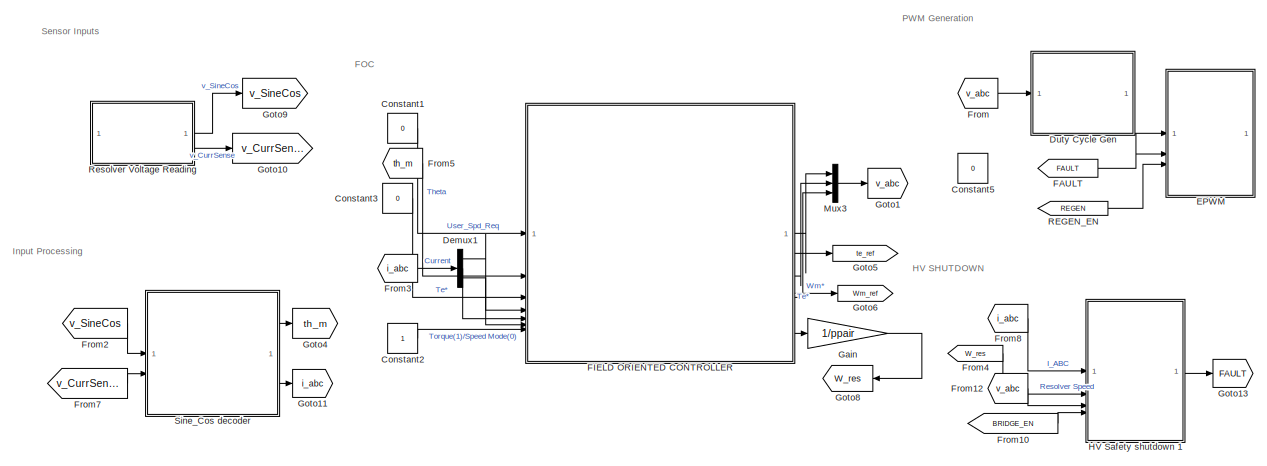
[diagram: root canvas - part 1/2, full width, top band]
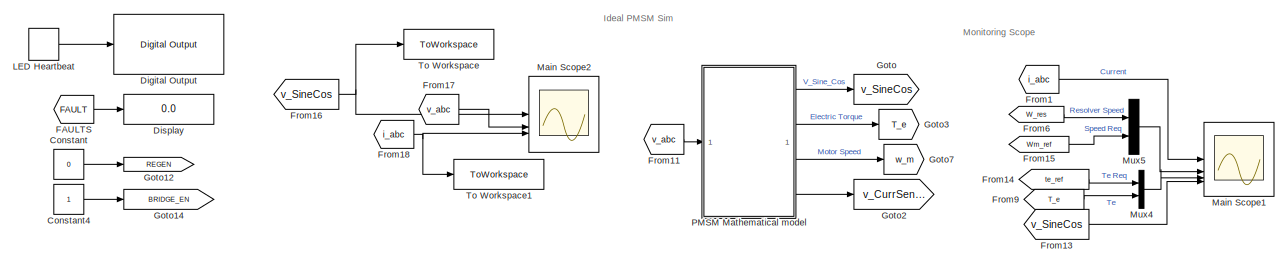
[diagram: root canvas - part 2/2, full width, bottom band]
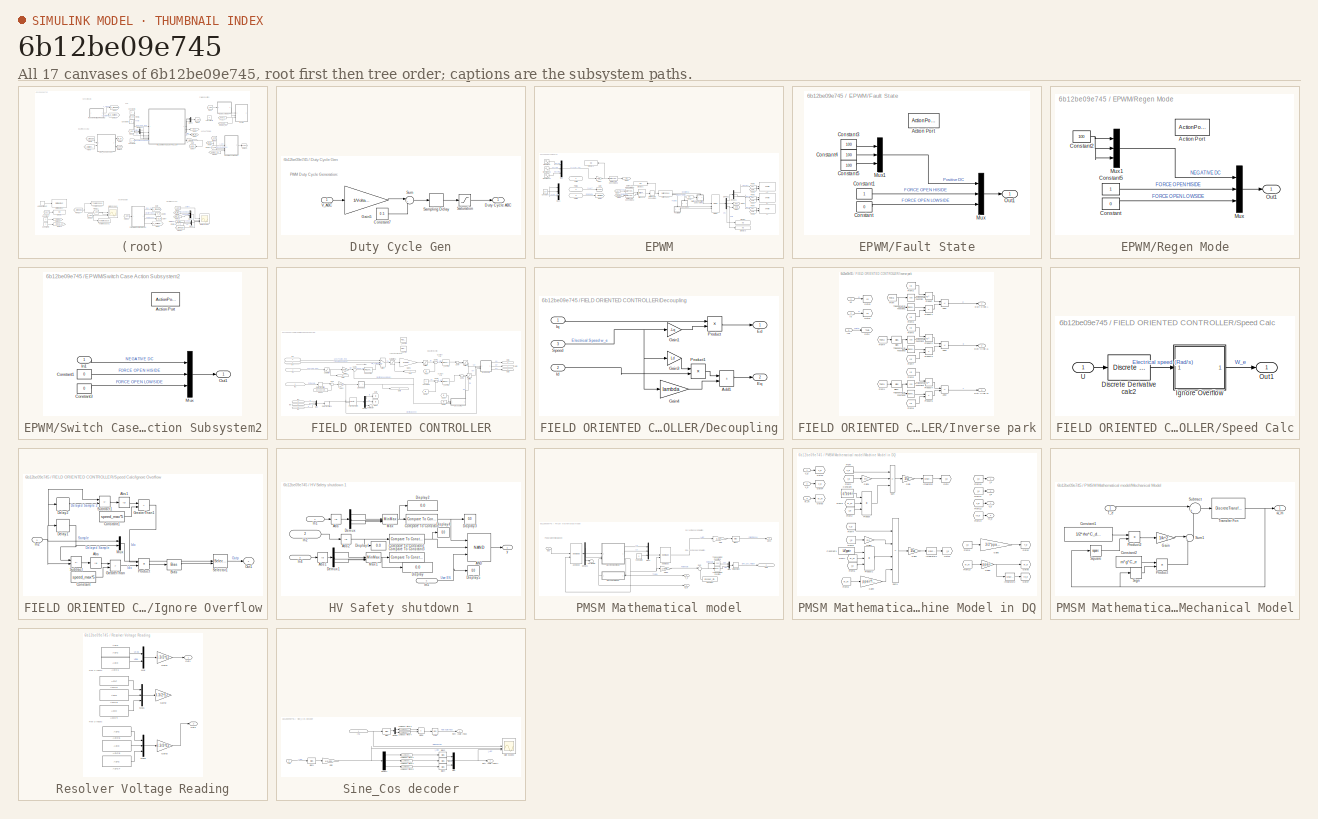
[diagram: thumbnail index - all 17 canvases of the model, root first then tree order]
MODEL slx_6b12be09e745
KIND model
CONFIG AbsTol = auto
CONFIG EnableMultiTasking = on
CONFIG FixedStep = sample_time
CONFIG MaxStep = auto
CONFIG MinStep = auto
CONFIG RelTol = 1e-3
CONFIG SampleTimeConstraint = Unconstrained
CONFIG SolverName = FixedStepDiscrete
CONFIG StartTime = 0.0
CONFIG StopTime = inf
BLOCK [Constant] Constant
  Value = 0
BLOCK [Constant] Constant1
  OutDataTypeStr = single
  Value = 0
BLOCK [Constant] Constant2
BLOCK [Constant] Constant3
  OutDataTypeStr = single
  Value = 0
BLOCK [Constant] Constant4
BLOCK [Constant] Constant5
  Value = 0
BLOCK [Demux] Demux1
  Outputs = 3
BLOCK [Reference] Digital Output  REF=c28004xlib/Digital Output
  SourceBlock = c28004xlib/Digital Output
  SourceType = F28004x GPIO Digital Output
  UserDataPersistent = on
BLOCK [Display] Display
  Decimation = 1
BLOCK [SubSystem] Duty Cycle Gen
BLOCK [Constant] Duty Cycle Gen/Constant7
  Value = 0.5
BLOCK [Outport] Duty Cycle Gen/Duty Cycle ABC
BLOCK [Gain] Duty Cycle Gen/Gain5
  Gain = 1/Voltage_max
  OutDataTypeStr = single
  RndMeth = Nearest
BLOCK [Delay] Duty Cycle Gen/Sampling Delay
  DelayLength = 1
  InputPortMap = u0
BLOCK [Saturate] Duty Cycle Gen/Saturation
  LowerLimit = 0
  OutDataTypeStr = single
  RndMeth = Nearest
  UpperLimit = 95
BLOCK [Sum] Duty Cycle Gen/Sum
  Inputs = |++
BLOCK [Inport] Duty Cycle Gen/V_ABC
BLOCK [SubSystem] EPWM
BLOCK [Reference] EPWM/AHI  REF=c2802xlib/ePWM
  SourceBlock = c2802xlib/ePWM
  SourceType = ePWM Type 1-4
  UserDataPersistent = on
BLOCK [Reference] EPWM/B1  REF=c2802xlib/ePWM
  SourceBlock = c2802xlib/ePWM
  SourceType = ePWM Type 1-4
  UserDataPersistent = on
BLOCK [Reference] EPWM/Bit Concat  REF=hdlsllib/Logic and Bit
Operations/Bit Concat
  SourceBlock = hdlsllib/Logic and Bit\nOperations/Bit Concat
  SourceType = Bit Concat
BLOCK [Reference] EPWM/C1  REF=c2802xlib/ePWM
  SourceBlock = c2802xlib/ePWM
  SourceType = ePWM Type 1-4
  UserDataPersistent = on
BLOCK [Constant] EPWM/Constant
  Commented = on
  Value = 0.37
  VectorParams1D = off
BLOCK [DataTypeConversion] EPWM/Data Type Conversion
  OutDataTypeStr = int8
  RndMeth = Nearest
  SaturateOnIntegerOverflow = off
BLOCK [DataTypeConversion] EPWM/Data Type Conversion1
  OutDataTypeStr = boolean
  RndMeth = Nearest
  SaturateOnIntegerOverflow = off
BLOCK [DataTypeConversion] EPWM/Data Type Conversion2
  OutDataTypeStr = boolean
  RndMeth = Nearest
  SaturateOnIntegerOverflow = off
BLOCK [DataTypeConversion] EPWM/Data Type Conversion3
  OutDataTypeStr = single
  RndMeth = Nearest
  SaturateOnIntegerOverflow = off
BLOCK [Demux] EPWM/Demux1
  Outputs = 3
BLOCK [Demux] EPWM/Demux2
  Outputs = [3,1,1]
BLOCK [Display] EPWM/Display
  Decimation = 1
BLOCK [Display] EPWM/Display1
  Decimation = 1
  Format = binary (Stored Integer)
  NameLocation = top
BLOCK [Display] EPWM/Display2
  Decimation = 1
  NameLocation = top
BLOCK [Display] EPWM/Display3
  Decimation = 1
BLOCK [SubSystem] EPWM/Fault State
  TreatAsAtomicUnit = on
BLOCK [ActionPort] EPWM/Fault State/Action Port
  ActionPortLabel = default:
BLOCK [Constant] EPWM/Fault State/Constant
  OutDataTypeStr = single
  Value = 0
BLOCK [Constant] EPWM/Fault State/Constant1
  OutDataTypeStr = single
BLOCK [Constant] EPWM/Fault State/Constant3
  OutDataTypeStr = single
  Value = 100
BLOCK [Constant] EPWM/Fault State/Constant4
  OutDataTypeStr = single
  Value = 100
BLOCK [Constant] EPWM/Fault State/Constant5
  OutDataTypeStr = single
  Value = 100
BLOCK [Mux] EPWM/Fault State/Mux
  DisplayOption = bar
  Inputs = 3
BLOCK [Mux] EPWM/Fault State/Mux1
  DisplayOption = bar
  Inputs = 3
BLOCK [Outport] EPWM/Fault State/Out1
BLOCK [From] EPWM/From
  GotoTag = FAULT
BLOCK [From] EPWM/From1
  GotoTag = REGEN
BLOCK [From] EPWM/From2
  GotoTag = DC
BLOCK [From] EPWM/From3
  GotoTag = SFA
BLOCK [From] EPWM/From4
  GotoTag = SFB
BLOCK [From] EPWM/From5
  GotoTag = SFA
BLOCK [From] EPWM/From6
  GotoTag = SFB
BLOCK [From] EPWM/From7
  GotoTag = SFA
BLOCK [From] EPWM/From8
  GotoTag = SFB
BLOCK [Gain] EPWM/Gain1
  Gain = 100
BLOCK [Goto] EPWM/Goto
  GotoTag = FAULT
BLOCK [Goto] EPWM/Goto1
  GotoTag = REGEN
BLOCK [Goto] EPWM/Goto2
  GotoTag = DC
BLOCK [Goto] EPWM/Goto3
  GotoTag = SFA
BLOCK [Goto] EPWM/Goto4
  GotoTag = SFB
BLOCK [Merge] EPWM/Merge
  Inputs = 3
BLOCK [Mux] EPWM/Mux
  DisplayOption = bar
  Inputs = 3
BLOCK [Mux] EPWM/Mux1
  Commented = on
  DisplayOption = bar
  Inputs = 3
BLOCK [Inport] EPWM/PWM
  IconDisplay = Port number and signal name
BLOCK [Inport] EPWM/PWM1
  IconDisplay = Port number and signal name
  Port = 2
BLOCK [Inport] EPWM/PWM2
  IconDisplay = Port number and signal name
  Port = 3
BLOCK [SubSystem] EPWM/Regen Mode
  TreatAsAtomicUnit = on
BLOCK [ActionPort] EPWM/Regen Mode/Action Port
  ActionPortLabel = case [ 1 ]:
BLOCK [Constant] EPWM/Regen Mode/Constant
  OutDataTypeStr = single
  Value = 0
BLOCK [Constant] EPWM/Regen Mode/Constant2
  OutDataTypeStr = single
  Value = 100
BLOCK [Constant] EPWM/Regen Mode/Constant5
  OutDataTypeStr = single
BLOCK [Mux] EPWM/Regen Mode/Mux
  DisplayOption = bar
  Inputs = 3
BLOCK [Mux] EPWM/Regen Mode/Mux1
  DisplayOption = bar
  Inputs = 3
BLOCK [Outport] EPWM/Regen Mode/Out1
  OutDataTypeStr = single
BLOCK [Sin] EPWM/Sine Wave
  Amplitude = 0.43
  Bias = 0.43
  Frequency = 0.1*2*pi
  SampleTime = 0
BLOCK [Sin] EPWM/Sine Wave1
  Amplitude = 0.43
  Bias = 0.43
  Frequency = 0.1*2*pi
  Phase = -2*pi/3
  SampleTime = 0
BLOCK [Sin] EPWM/Sine Wave2
  Amplitude = 0.43
  Bias = 0.43
  Frequency = 0.1*2*pi
  Phase = 2*pi/3
  SampleTime = 0
BLOCK [SwitchCase] EPWM/Switch Case
  CaseConditions = {0,1}
BLOCK [SubSystem] EPWM/Switch Case Action Subsystem2
  TreatAsAtomicUnit = on
BLOCK [ActionPort] EPWM/Switch Case Action Subsystem2/Action Port
  ActionPortLabel = case [ 0 ]:
BLOCK [Constant] EPWM/Switch Case Action Subsystem2/Constant1
  OutDataTypeStr = single
  Value = 0
BLOCK [Constant] EPWM/Switch Case Action Subsystem2/Constant3
  OutDataTypeStr = single
  Value = 0
BLOCK [Inport] EPWM/Switch Case Action Subsystem2/In1
BLOCK [Mux] EPWM/Switch Case Action Subsystem2/Mux
  DisplayOption = bar
  Inputs = 3
BLOCK [Outport] EPWM/Switch Case Action Subsystem2/Out1
  OutDataTypeStr = single
BLOCK [From] FAULT
  GotoTag = FAULT
BLOCK [From] FAULTS
  GotoTag = FAULT
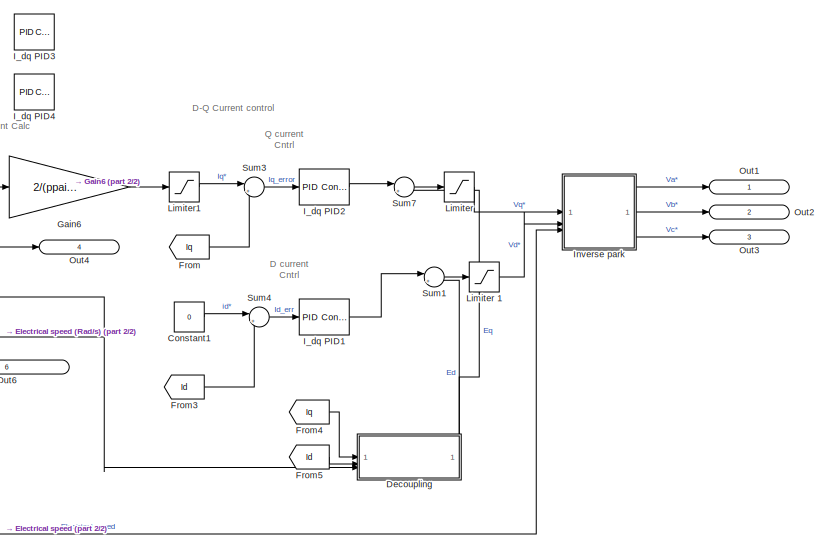
[diagram: FIELD ORIENTED CONTROLLER - part 1/2, right side, full height]
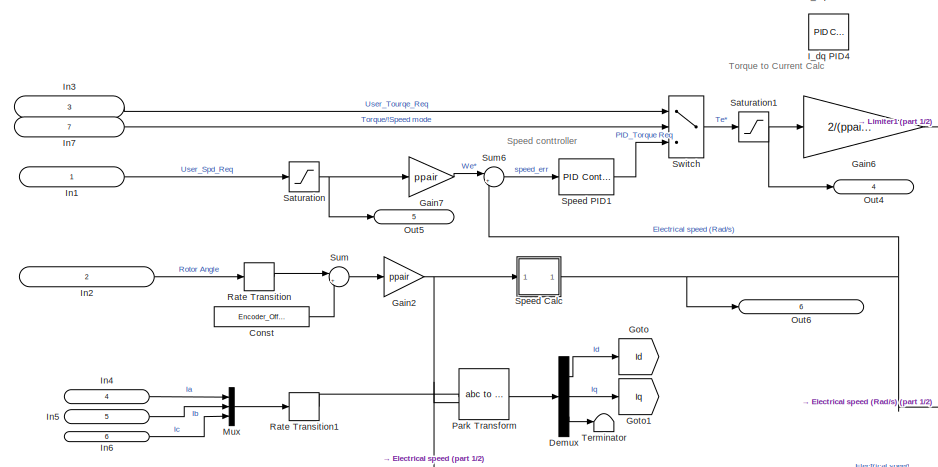
[diagram: FIELD ORIENTED CONTROLLER - part 2/2, left side, full height]
BLOCK [SubSystem] FIELD ORIENTED CONTROLLER
  NameLocation = top
BLOCK [Constant] FIELD ORIENTED CONTROLLER/Const
  Value = Encoder_Offset
BLOCK [Constant] FIELD ORIENTED CONTROLLER/Constant1
  Value = 0
BLOCK [SubSystem] FIELD ORIENTED CONTROLLER/Decoupling
  PortSchema = {"entries":[{"content":{"sides":[{"content":{"connectorIds":["In1","In2","In3"]},"type":"ConnectorPlacement.EquallySpacedRectSide","uuid":"5f512ccb-8595-4499-a419-e995908cd1f5"},{"content":{"side":"RIGHT"},"type":"ConnectorPlacement.EquallySpacedRectSide","uuid":"2a1de219-597a-4818-9587-d28590d7f25d"},{"content":{"connectorIds":["Out1","Out2"],"side":"TOP"},"type":"ConnectorPlacement.EquallySpaced...<+241ch>
BLOCK [Sum] FIELD ORIENTED CONTROLLER/Decoupling/Add1
  IconShape = rectangular
  OutDataTypeStr = single
  RndMeth = Nearest
BLOCK [Outport] FIELD ORIENTED CONTROLLER/Decoupling/Ed
BLOCK [Outport] FIELD ORIENTED CONTROLLER/Decoupling/Eq
  Port = 2
BLOCK [Gain] FIELD ORIENTED CONTROLLER/Decoupling/Gain1
  Gain = -Lq
  OutDataTypeStr = single
  ParamDataTypeStr = single
  RndMeth = Nearest
BLOCK [Gain] FIELD ORIENTED CONTROLLER/Decoupling/Gain3
  Gain = Ld
  OutDataTypeStr = single
  RndMeth = Nearest
BLOCK [Gain] FIELD ORIENTED CONTROLLER/Decoupling/Gain4
  Gain = lambda
  OutDataTypeStr = single
  RndMeth = Nearest
BLOCK [Inport] FIELD ORIENTED CONTROLLER/Decoupling/Id
  Port = 2
BLOCK [Inport] FIELD ORIENTED CONTROLLER/Decoupling/Iq
BLOCK [Product] FIELD ORIENTED CONTROLLER/Decoupling/Product
  OutDataTypeStr = single
  RndMeth = Nearest
BLOCK [Product] FIELD ORIENTED CONTROLLER/Decoupling/Product1
  OutDataTypeStr = single
  RndMeth = Nearest
BLOCK [Inport] FIELD ORIENTED CONTROLLER/Decoupling/Speed
  Port = 3
BLOCK [Demux] FIELD ORIENTED CONTROLLER/Demux
  Outputs = 3
BLOCK [From] FIELD ORIENTED CONTROLLER/From
  GotoTag = Iq
BLOCK [From] FIELD ORIENTED CONTROLLER/From3
  GotoTag = Id
BLOCK [From] FIELD ORIENTED CONTROLLER/From4
  GotoTag = Iq
BLOCK [From] FIELD ORIENTED CONTROLLER/From5
  GotoTag = Id
BLOCK [Gain] FIELD ORIENTED CONTROLLER/Gain2
  Gain = ppair
  OutDataTypeStr = single
  RndMeth = Nearest
BLOCK [Gain] FIELD ORIENTED CONTROLLER/Gain6
  Gain = 2/(ppair*lambda*3)
  OutDataTypeStr = single
  RndMeth = Nearest
BLOCK [Gain] FIELD ORIENTED CONTROLLER/Gain7
  Gain = ppair
  OutDataTypeStr = single
  RndMeth = Nearest
BLOCK [Goto] FIELD ORIENTED CONTROLLER/Goto
  GotoTag = Id
BLOCK [Goto] FIELD ORIENTED CONTROLLER/Goto1
  GotoTag = Iq
BLOCK [Reference] FIELD ORIENTED CONTROLLER/I_dq PID1  REF=slpidlib/PID Controller
  LibrarySourceBlock = simulink/Continuous/PID Controller
  SourceBlock = slpidlib/PID Controller
  SourceType = PID 1dof
BLOCK [Reference] FIELD ORIENTED CONTROLLER/I_dq PID2  REF=slpidlib/PID Controller
  LibrarySourceBlock = simulink/Continuous/PID Controller
  SourceBlock = slpidlib/PID Controller
  SourceType = PID 1dof
BLOCK [Reference] FIELD ORIENTED CONTROLLER/I_dq PID3  REF=slpidlib/PID Controller
  Commented = on
  LibrarySourceBlock = simulink/Continuous/PID Controller
  SourceBlock = slpidlib/PID Controller
  SourceType = PID 1dof
BLOCK [Reference] FIELD ORIENTED CONTROLLER/I_dq PID4  REF=slpidlib/PID Controller
  Commented = on
  LibrarySourceBlock = simulink/Continuous/PID Controller
  SourceBlock = slpidlib/PID Controller
  SourceType = PID 1dof
BLOCK [Inport] FIELD ORIENTED CONTROLLER/In1
  IconDisplay = Port number and signal name
BLOCK [Inport] FIELD ORIENTED CONTROLLER/In2
  IconDisplay = Signal name
  Port = 2
BLOCK [Inport] FIELD ORIENTED CONTROLLER/In3
  IconDisplay = Port number and signal name
  Port = 3
BLOCK [Inport] FIELD ORIENTED CONTROLLER/In4
  IconDisplay = Port number and signal name
  Port = 4
BLOCK [Inport] FIELD ORIENTED CONTROLLER/In5
  IconDisplay = Port number and signal name
  Port = 5
BLOCK [Inport] FIELD ORIENTED CONTROLLER/In6
  IconDisplay = Port number and signal name
  Port = 6
BLOCK [Inport] FIELD ORIENTED CONTROLLER/In7
  IconDisplay = Port number and signal name
  Port = 7
BLOCK [SubSystem] FIELD ORIENTED CONTROLLER/Inverse park
BLOCK [Sum] FIELD ORIENTED CONTROLLER/Inverse park/Add1
  IconShape = rectangular
  Inputs = +-
  OutDataTypeStr = single
  RndMeth = Nearest
BLOCK [Sum] FIELD ORIENTED CONTROLLER/Inverse park/Add2
  IconShape = rectangular
  Inputs = +-
  OutDataTypeStr = single
  RndMeth = Nearest
BLOCK [Sum] FIELD ORIENTED CONTROLLER/Inverse park/Add3
  IconShape = rectangular
  Inputs = +-
  OutDataTypeStr = single
  RndMeth = Nearest
BLOCK [Bias] FIELD ORIENTED CONTROLLER/Inverse park/Bias
  Bias = -2*pi/3
  SaturateOnIntegerOverflow = off
BLOCK [Bias] FIELD ORIENTED CONTROLLER/Inverse park/Bias1
  Bias = 2*pi/3
  SaturateOnIntegerOverflow = off
BLOCK [Outport] FIELD ORIENTED CONTROLLER/Inverse park/Duty Cycle A
  IconDisplay = Signal name
BLOCK [Outport] FIELD ORIENTED CONTROLLER/Inverse park/Duty Cycle A1
  IconDisplay = Signal name
  Port = 2
BLOCK [Outport] FIELD ORIENTED CONTROLLER/Inverse park/Duty Cycle A2
  IconDisplay = Signal name
  Port = 3
BLOCK [From] FIELD ORIENTED CONTROLLER/Inverse park/From
  GotoTag = Theta
BLOCK [From] FIELD ORIENTED CONTROLLER/Inverse park/From1
  GotoTag = Theta
BLOCK [From] FIELD ORIENTED CONTROLLER/Inverse park/From2
  GotoTag = Id
BLOCK [From] FIELD ORIENTED CONTROLLER/Inverse park/From3
  GotoTag = Iq
BLOCK [From] FIELD ORIENTED CONTROLLER/Inverse park/From4
  GotoTag = Theta
BLOCK [From] FIELD ORIENTED CONTROLLER/Inverse park/From5
  GotoTag = Id
BLOCK [From] FIELD ORIENTED CONTROLLER/Inverse park/From6
  GotoTag = Id
BLOCK [From] FIELD ORIENTED CONTROLLER/Inverse park/From7
  GotoTag = Iq
BLOCK [From] FIELD ORIENTED CONTROLLER/Inverse park/From8
  GotoTag = Iq
BLOCK [Goto] FIELD ORIENTED CONTROLLER/Inverse park/Goto
  GotoTag = Theta
BLOCK [Goto] FIELD ORIENTED CONTROLLER/Inverse park/Goto1
  GotoTag = Id
BLOCK [Goto] FIELD ORIENTED CONTROLLER/Inverse park/Goto2
  GotoTag = Iq
BLOCK [Inport] FIELD ORIENTED CONTROLLER/Inverse park/In3
  IconDisplay = Signal name
  Port = 3
BLOCK [Inport] FIELD ORIENTED CONTROLLER/Inverse park/Iq
  IconDisplay = Signal name
  Port = 2
BLOCK [Product] FIELD ORIENTED CONTROLLER/Inverse park/Product
  OutDataTypeStr = single
  RndMeth = Nearest
BLOCK [Product] FIELD ORIENTED CONTROLLER/Inverse park/Product1
  OutDataTypeStr = single
  RndMeth = Nearest
BLOCK [Product] FIELD ORIENTED CONTROLLER/Inverse park/Product2
  OutDataTypeStr = single
  RndMeth = Nearest
BLOCK [Product] FIELD ORIENTED CONTROLLER/Inverse park/Product3
  OutDataTypeStr = single
  RndMeth = Nearest
BLOCK [Product] FIELD ORIENTED CONTROLLER/Inverse park/Product4
  OutDataTypeStr = single
  RndMeth = Nearest
BLOCK [Product] FIELD ORIENTED CONTROLLER/Inverse park/Product5
  OutDataTypeStr = single
  RndMeth = Nearest
BLOCK [Trigonometry] FIELD ORIENTED CONTROLLER/Inverse park/Trigonometric Function
  Operator = cos
BLOCK [Trigonometry] FIELD ORIENTED CONTROLLER/Inverse park/Trigonometric Function1
BLOCK [Trigonometry] FIELD ORIENTED CONTROLLER/Inverse park/Trigonometric Function2
  Operator = cos
BLOCK [Trigonometry] FIELD ORIENTED CONTROLLER/Inverse park/Trigonometric Function3
BLOCK [Trigonometry] FIELD ORIENTED CONTROLLER/Inverse park/Trigonometric Function4
  Operator = cos
BLOCK [Trigonometry] FIELD ORIENTED CONTROLLER/Inverse park/Trigonometric Function5
BLOCK [Inport] FIELD ORIENTED CONTROLLER/Inverse park/Vq
  IconDisplay = Signal name
BLOCK [Saturate] FIELD ORIENTED CONTROLLER/Limiter
  LinearizeAsGain = off
  LowerLimit = -Voltage_max
  UpperLimit = Voltage_max
BLOCK [Saturate] FIELD ORIENTED CONTROLLER/Limiter 1
  LinearizeAsGain = off
  LowerLimit = 0
  UpperLimit = Voltage_max
BLOCK [Saturate] FIELD ORIENTED CONTROLLER/Limiter1
  LinearizeAsGain = off
  LowerLimit = -Current_max
  UpperLimit = Current_max
BLOCK [Mux] FIELD ORIENTED CONTROLLER/Mux
  DisplayOption = bar
  Inputs = 3
BLOCK [Outport] FIELD ORIENTED CONTROLLER/Out1
  IconDisplay = Port number and signal name
BLOCK [Outport] FIELD ORIENTED CONTROLLER/Out2
  IconDisplay = Port number and signal name
  Port = 2
BLOCK [Outport] FIELD ORIENTED CONTROLLER/Out3
  IconDisplay = Port number and signal name
  Port = 3
BLOCK [Outport] FIELD ORIENTED CONTROLLER/Out4
  IconDisplay = Port number and signal name
  Port = 4
BLOCK [Outport] FIELD ORIENTED CONTROLLER/Out5
  IconDisplay = Port number and signal name
  Port = 5
BLOCK [Outport] FIELD ORIENTED CONTROLLER/Out6
  IconDisplay = Port number and signal name
  Port = 6
BLOCK [Reference] FIELD ORIENTED CONTROLLER/Park Transform  REF=spsabctodq0Lib/abc to dq0
  SourceBlock = spsabctodq0Lib/abc to dq0
  SourceType = abc to dq0 Transformation
BLOCK [RateTransition] FIELD ORIENTED CONTROLLER/Rate Transition
  OutPortSampleTime = sample_time
BLOCK [RateTransition] FIELD ORIENTED CONTROLLER/Rate Transition1
  OutPortSampleTime = sample_time
BLOCK [Saturate] FIELD ORIENTED CONTROLLER/Saturation
  LowerLimit = -speed_max
  UpperLimit = speed_max
BLOCK [Saturate] FIELD ORIENTED CONTROLLER/Saturation1
  LowerLimit = -Torque_max
  OutDataTypeStr = single
  RndMeth = Nearest
  UpperLimit = Torque_max
BLOCK [SubSystem] FIELD ORIENTED CONTROLLER/Speed Calc
BLOCK [Reference] FIELD ORIENTED CONTROLLER/Speed Calc/Discrete Derivative calc2  REF=simulink/Discrete/Discrete Derivative
  SourceBlock = simulink/Discrete/Discrete Derivative
  SourceType = Discrete Derivative
BLOCK [SubSystem] FIELD ORIENTED CONTROLLER/Speed Calc/Ignore Overflow
BLOCK [Abs] FIELD ORIENTED CONTROLLER/Speed Calc/Ignore Overflow/Abs
  SaturateOnIntegerOverflow = off
BLOCK [Abs] FIELD ORIENTED CONTROLLER/Speed Calc/Ignore Overflow/Abs1
  SaturateOnIntegerOverflow = off
BLOCK [Bias] FIELD ORIENTED CONTROLLER/Speed Calc/Ignore Overflow/Bias
  Bias = 1
  SaturateOnIntegerOverflow = off
BLOCK [Constant] FIELD ORIENTED CONTROLLER/Speed Calc/Ignore Overflow/Constant
  OutDataTypeStr = single
  Value = speed_max*5
BLOCK [Constant] FIELD ORIENTED CONTROLLER/Speed Calc/Ignore Overflow/Constant1
  OutDataTypeStr = single
  Value = speed_max*5
BLOCK [Delay] FIELD ORIENTED CONTROLLER/Speed Calc/Ignore Overflow/Delay1
  DelayLength = 1
  InputPortMap = u0
  InputProcessing = Columns as channels (frame based)
BLOCK [Delay] FIELD ORIENTED CONTROLLER/Speed Calc/Ignore Overflow/Delay2
  InputPortMap = u0
  InputProcessing = Columns as channels (frame based)
BLOCK [RelationalOperator] FIELD ORIENTED CONTROLLER/Speed Calc/Ignore Overflow/GreaterThan
  InputSameDT = off
  Operator = >
  OutDataTypeStr = fixdt(1,16)
  RndMeth = Simplest
BLOCK [RelationalOperator] FIELD ORIENTED CONTROLLER/Speed Calc/Ignore Overflow/GreaterThan1
  InputSameDT = off
  Operator = >
  OutDataTypeStr = fixdt(1,16)
  RndMeth = Simplest
BLOCK [Inport] FIELD ORIENTED CONTROLLER/Speed Calc/Ignore Overflow/In2
  OutDataTypeStr = single
BLOCK [Mux] FIELD ORIENTED CONTROLLER/Speed Calc/Ignore Overflow/Mux
  DisplayOption = bar
  Inputs = 2
BLOCK [Outport] FIELD ORIENTED CONTROLLER/Speed Calc/Ignore Overflow/Out1
  OutDataTypeStr = single
BLOCK [Product] FIELD ORIENTED CONTROLLER/Speed Calc/Ignore Overflow/Product
BLOCK [Selector] FIELD ORIENTED CONTROLLER/Speed Calc/Ignore Overflow/Selector1
  IndexOptions = Index vector (port)
  Indices = [1 3]
  InputPortWidth = 2
  OutputSizes = 1
BLOCK [Sum] FIELD ORIENTED CONTROLLER/Speed Calc/Ignore Overflow/Subtract
  IconShape = rectangular
  Inputs = +-
  OutDataTypeStr = single
  RndMeth = Nearest
BLOCK [Sum] FIELD ORIENTED CONTROLLER/Speed Calc/Ignore Overflow/Subtract1
  IconShape = rectangular
  Inputs = +-
  OutDataTypeStr = single
  RndMeth = Nearest
BLOCK [Outport] FIELD ORIENTED CONTROLLER/Speed Calc/Out1
BLOCK [Inport] FIELD ORIENTED CONTROLLER/Speed Calc/U
BLOCK [Reference] FIELD ORIENTED CONTROLLER/Speed PID1  REF=slpidlib/PID Controller
  LibrarySourceBlock = simulink/Continuous/PID Controller
  SourceBlock = slpidlib/PID Controller
  SourceType = PID 1dof
BLOCK [Sum] FIELD ORIENTED CONTROLLER/Sum
  AccumDataTypeStr = single
  Inputs = |+-
  OutDataTypeStr = single
  RndMeth = Nearest
BLOCK [Sum] FIELD ORIENTED CONTROLLER/Sum1
  Inputs = |++
BLOCK [Sum] FIELD ORIENTED CONTROLLER/Sum3
  Inputs = |+-
BLOCK [Sum] FIELD ORIENTED CONTROLLER/Sum4
  Inputs = |+-
BLOCK [Sum] FIELD ORIENTED CONTROLLER/Sum6
  Inputs = |+-
  OutDataTypeStr = single
  RndMeth = Nearest
BLOCK [Sum] FIELD ORIENTED CONTROLLER/Sum7
  Inputs = |++
BLOCK [Switch] FIELD ORIENTED CONTROLLER/Switch
  Criteria = u2 > Threshold
  InputSameDT = off
  OutDataTypeStr = single
  SaturateOnIntegerOverflow = off
BLOCK [Terminator] FIELD ORIENTED CONTROLLER/Terminator
BLOCK [From] From
  GotoTag = v_abc
BLOCK [From] From1
  GotoTag = i_abc
BLOCK [From] From10
  GotoTag = BRIDGE_EN
BLOCK [From] From11
  Commented = on
  GotoTag = v_abc
BLOCK [From] From12
  GotoTag = v_abc
BLOCK [From] From13
  GotoTag = v_SineCos
BLOCK [From] From14
  GotoTag = te_ref
BLOCK [From] From15
  GotoTag = Wm_ref
BLOCK [From] From16
  GotoTag = v_SineCos
BLOCK [From] From17
  GotoTag = v_abc
BLOCK [From] From18
  GotoTag = i_abc
BLOCK [From] From2
  GotoTag = v_SineCos
BLOCK [From] From3
  GotoTag = i_abc
BLOCK [From] From4
  GotoTag = W_res
BLOCK [From] From5
  GotoTag = th_m
BLOCK [From] From6
  GotoTag = W_res
BLOCK [From] From7
  GotoTag = v_CurrSense
BLOCK [From] From8
  GotoTag = i_abc
BLOCK [From] From9
  GotoTag = T_e
BLOCK [Gain] Gain
  Gain = 1/ppair
BLOCK [Goto] Goto
  Commented = on
  GotoTag = v_SineCos
BLOCK [Goto] Goto1
  GotoTag = v_abc
BLOCK [Goto] Goto10
  GotoTag = v_CurrSense
BLOCK [Goto] Goto11
  GotoTag = i_abc
BLOCK [Goto] Goto12
  GotoTag = REGEN
BLOCK [Goto] Goto13
  GotoTag = FAULT
BLOCK [Goto] Goto14
  GotoTag = BRIDGE_EN
BLOCK [Goto] Goto2
  Commented = on
  GotoTag = v_CurrSense
BLOCK [Goto] Goto3
  Commented = on
  GotoTag = T_e
BLOCK [Goto] Goto4
  GotoTag = th_m
BLOCK [Goto] Goto5
  GotoTag = te_ref
BLOCK [Goto] Goto6
  GotoTag = Wm_ref
BLOCK [Goto] Goto7
  Commented = on
  GotoTag = w_m
BLOCK [Goto] Goto8
  GotoTag = W_res
  NameLocation = top
BLOCK [Goto] Goto9
  GotoTag = v_SineCos
BLOCK [SubSystem] HV Safety shutdown 1
BLOCK [Logic] HV Safety shutdown 1/AND
  AllPortsSameDT = off
  IconShape = distinctive
  Inputs = 3
  Operator = NAND
  OutDataTypeStr = boolean
BLOCK [Abs] HV Safety shutdown 1/Abs
  RndMeth = Nearest
  SaturateOnIntegerOverflow = off
BLOCK [Abs] HV Safety shutdown 1/Abs1
  Commented = on
  RndMeth = Nearest
  SaturateOnIntegerOverflow = off
BLOCK [Abs] HV Safety shutdown 1/Abs2
  RndMeth = Nearest
  SaturateOnIntegerOverflow = off
BLOCK [Reference] HV Safety shutdown 1/Compare To Constant  REF=simulink/Logic and Bit
Operations/Compare
To Constant
  SourceBlock = simulink/Logic and Bit\nOperations/Compare\nTo Constant
  SourceType = Compare To Constant
BLOCK [Reference] HV Safety shutdown 1/Compare To Constant1  REF=simulink/Logic and Bit
Operations/Compare
To Constant
  SourceBlock = simulink/Logic and Bit\nOperations/Compare\nTo Constant
  SourceType = Compare To Constant
BLOCK [Reference] HV Safety shutdown 1/Compare To Constant3  REF=simulink/Logic and Bit
Operations/Compare
To Constant
  Commented = on
  SourceBlock = simulink/Logic and Bit\nOperations/Compare\nTo Constant
  SourceType = Compare To Constant
BLOCK [Demux] HV Safety shutdown 1/Demux
  Outputs = 3
BLOCK [Demux] HV Safety shutdown 1/Demux1
  Commented = on
  Outputs = 3
BLOCK [Display] HV Safety shutdown 1/Display
  Commented = on
  Decimation = 1
BLOCK [Display] HV Safety shutdown 1/Display1
  Decimation = 1
BLOCK [Display] HV Safety shutdown 1/Display2
  Decimation = 1
BLOCK [Display] HV Safety shutdown 1/Display3
  Decimation = 1
BLOCK [Display] HV Safety shutdown 1/Display4
  Decimation = 1
BLOCK [Display] HV Safety shutdown 1/Display5
  Decimation = 1
BLOCK [Inport] HV Safety shutdown 1/In1
  IconDisplay = Port number and signal name
BLOCK [Inport] HV Safety shutdown 1/In2
  IconDisplay = Port number and signal name
  Port = 2
BLOCK [Inport] HV Safety shutdown 1/In4
  IconDisplay = Port number and signal name
  Port = 3
BLOCK [Inport] HV Safety shutdown 1/In5
  IconDisplay = Port number and signal name
  Port = 4
BLOCK [MinMax] HV Safety shutdown 1/Max
  Function = max
  Inputs = 3
BLOCK [MinMax] HV Safety shutdown 1/Max1
  Commented = on
  Function = max
  Inputs = 3
BLOCK [Outport] HV Safety shutdown 1/y
BLOCK [DiscretePulseGenerator] LED Heartbeat
  Period = 1
  PulseType = Time based
  PulseWidth = 50
BLOCK [Scope] Main Scope1
  Floating = off
  NumInputPorts = 4
  ScopeSpecificationString = Simulink.scopes.TimeScopeBlockCfg('CurrentConfiguration', extmgr.ConfigurationSet(extmgr.Configuration('Core','General UI',true,'FigureColor',[1 1 1]),extmgr.Configuration('Core','Source UI',true),extmgr.Configuration('Sources','WiredSimulink',true,'DataLoggingVariableName','ScopeData1'),extmgr.Configuration('Visuals','Time Domain',true,'SerializedDisplays',{struct('MinYLimReal','-81.96868','MaxYL...<+4819ch>
BLOCK [Scope] Main Scope2
  Floating = off
  NumInputPorts = 3
  ScopeSpecificationString = Simulink.scopes.TimeScopeBlockCfg('CurrentConfiguration', extmgr.ConfigurationSet(extmgr.Configuration('Core','General UI',true,'FigureColor',[1 1 1]),extmgr.Configuration('Core','Source UI',true),extmgr.Configuration('Sources','WiredSimulink',true,'DataLoggingVariableName','ScopeData2','SampleTime','0.01'),extmgr.Configuration('Visuals','Time Domain',true,'SerializedDisplays',{struct('MinYLimReal...<+3910ch>
BLOCK [Mux] Mux3
  DisplayOption = bar
  Inputs = 3
BLOCK [Mux] Mux4
  DisplayOption = bar
  Inputs = 2
BLOCK [Mux] Mux5
  DisplayOption = bar
  Inputs = 2
BLOCK [SubSystem] PMSM Mathematical model
  Commented = on
BLOCK [Bias] PMSM Mathematical model/Bias1
  Bias = +1.65
  SaturateOnIntegerOverflow = off
BLOCK [Constant] PMSM Mathematical model/Constant
  NameLocation = top
  OutDataTypeStr = single
  Value = Encoder_Offset
BLOCK [Constant] PMSM Mathematical model/Constant3
  OutDataTypeStr = single
  Value = 0
BLOCK [Demux] PMSM Mathematical model/Demux1
  Outputs = 3
BLOCK [Gain] PMSM Mathematical model/Gain
  Gain = 0.024
BLOCK [Gain] PMSM Mathematical model/Gain6
  Gain = 1/ppair
  OutDataTypeStr = single
  RndMeth = Nearest
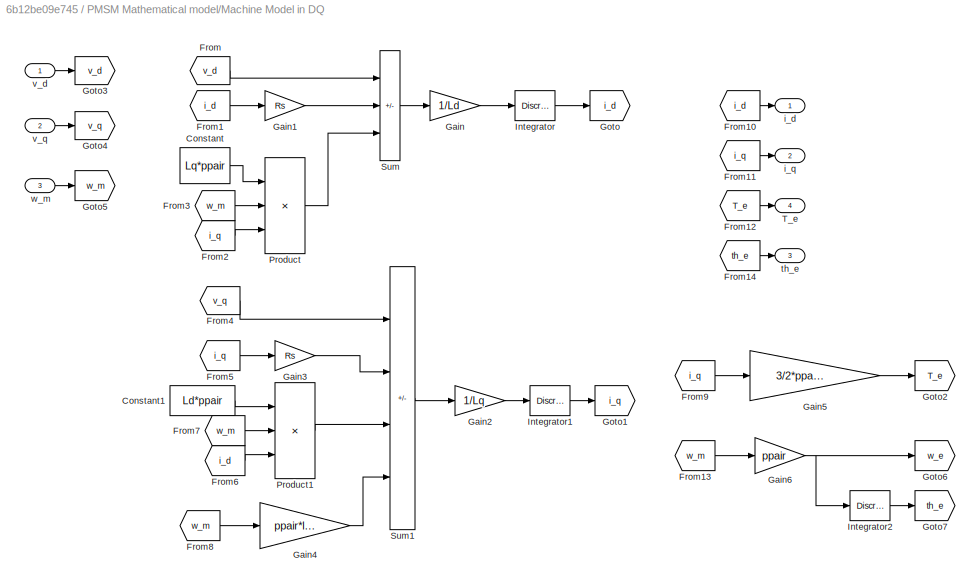
BLOCK [SubSystem] PMSM Mathematical model/Machine Model in DQ
BLOCK [Constant] PMSM Mathematical model/Machine Model in DQ/Constant
  OutDataTypeStr = single
  Value = Lq*ppair
BLOCK [Constant] PMSM Mathematical model/Machine Model in DQ/Constant1
  OutDataTypeStr = single
  Value = Ld*ppair
BLOCK [From] PMSM Mathematical model/Machine Model in DQ/From
  GotoTag = v_d
BLOCK [From] PMSM Mathematical model/Machine Model in DQ/From1
  GotoTag = i_d
BLOCK [From] PMSM Mathematical model/Machine Model in DQ/From10
  GotoTag = i_d
BLOCK [From] PMSM Mathematical model/Machine Model in DQ/From11
  GotoTag = i_q
BLOCK [From] PMSM Mathematical model/Machine Model in DQ/From12
  GotoTag = T_e
BLOCK [From] PMSM Mathematical model/Machine Model in DQ/From13
  GotoTag = w_m
BLOCK [From] PMSM Mathematical model/Machine Model in DQ/From14
  GotoTag = th_e
BLOCK [From] PMSM Mathematical model/Machine Model in DQ/From2
  GotoTag = i_q
BLOCK [From] PMSM Mathematical model/Machine Model in DQ/From3
  GotoTag = w_m
BLOCK [From] PMSM Mathematical model/Machine Model in DQ/From4
  GotoTag = v_q
BLOCK [From] PMSM Mathematical model/Machine Model in DQ/From5
  GotoTag = i_q
BLOCK [From] PMSM Mathematical model/Machine Model in DQ/From6
  GotoTag = i_d
BLOCK [From] PMSM Mathematical model/Machine Model in DQ/From7
  GotoTag = w_m
BLOCK [From] PMSM Mathematical model/Machine Model in DQ/From8
  GotoTag = w_m
BLOCK [From] PMSM Mathematical model/Machine Model in DQ/From9
  GotoTag = i_q
BLOCK [Gain] PMSM Mathematical model/Machine Model in DQ/Gain
  Gain = 1/Ld
BLOCK [Gain] PMSM Mathematical model/Machine Model in DQ/Gain1
  Gain = Rs
  OutDataTypeStr = single
  RndMeth = Nearest
BLOCK [Gain] PMSM Mathematical model/Machine Model in DQ/Gain2
  Gain = 1/Lq
BLOCK [Gain] PMSM Mathematical model/Machine Model in DQ/Gain3
  Gain = Rs
  OutDataTypeStr = single
  RndMeth = Nearest
BLOCK [Gain] PMSM Mathematical model/Machine Model in DQ/Gain4
  Gain = ppair*lambda
  ParamDataTypeStr = single
BLOCK [Gain] PMSM Mathematical model/Machine Model in DQ/Gain5
  Gain = 3/2*ppair*lambda
  OutDataTypeStr = single
  RndMeth = Nearest
BLOCK [Gain] PMSM Mathematical model/Machine Model in DQ/Gain6
  Gain = ppair
  OutDataTypeStr = single
  RndMeth = Nearest
BLOCK [Goto] PMSM Mathematical model/Machine Model in DQ/Goto
  GotoTag = i_d
BLOCK [Goto] PMSM Mathematical model/Machine Model in DQ/Goto1
  GotoTag = i_q
BLOCK [Goto] PMSM Mathematical model/Machine Model in DQ/Goto2
  GotoTag = T_e
BLOCK [Goto] PMSM Mathematical model/Machine Model in DQ/Goto3
  GotoTag = v_d
BLOCK [Goto] PMSM Mathematical model/Machine Model in DQ/Goto4
  GotoTag = v_q
BLOCK [Goto] PMSM Mathematical model/Machine Model in DQ/Goto5
  GotoTag = w_m
BLOCK [Goto] PMSM Mathematical model/Machine Model in DQ/Goto6
  GotoTag = w_e
BLOCK [Goto] PMSM Mathematical model/Machine Model in DQ/Goto7
  GotoTag = th_e
BLOCK [DiscreteIntegrator] PMSM Mathematical model/Machine Model in DQ/Integrator
  ICPrevOutput = DiscIntNeverNeededParam
  ICPrevScaledInput = DiscIntNeverNeededParam
  LimitOutput = on
  LowerSaturationLimit = -3.40282347E+38
  SampleTime = 0.000100000000000000005
  UpperSaturationLimit = 3.40282347E+38
BLOCK [DiscreteIntegrator] PMSM Mathematical model/Machine Model in DQ/Integrator1
  ICPrevOutput = DiscIntNeverNeededParam
  ICPrevScaledInput = DiscIntNeverNeededParam
  LimitOutput = on
  LowerSaturationLimit = -3.40282347E+38
  SampleTime = -1
  UpperSaturationLimit = 3.40282347E+38
BLOCK [DiscreteIntegrator] PMSM Mathematical model/Machine Model in DQ/Integrator2
  ICPrevOutput = DiscIntNeverNeededParam
  ICPrevScaledInput = DiscIntNeverNeededParam
  LimitOutput = on
  LowerSaturationLimit = -3.40282347E+38
  SampleTime = -1
  UpperSaturationLimit = 3.40282347E+38
BLOCK [Product] PMSM Mathematical model/Machine Model in DQ/Product
  Inputs = 3
  OutDataTypeStr = single
  RndMeth = Nearest
BLOCK [Product] PMSM Mathematical model/Machine Model in DQ/Product1
  Inputs = 3
  OutDataTypeStr = single
  RndMeth = Nearest
BLOCK [Sum] PMSM Mathematical model/Machine Model in DQ/Sum
  IconShape = rectangular
  Inputs = +-+
  OutDataTypeStr = single
  RndMeth = Nearest
BLOCK [Sum] PMSM Mathematical model/Machine Model in DQ/Sum1
  IconShape = rectangular
  Inputs = +---
  OutDataTypeStr = single
  RndMeth = Nearest
BLOCK [Outport] PMSM Mathematical model/Machine Model in DQ/T_e
  Port = 4
BLOCK [Outport] PMSM Mathematical model/Machine Model in DQ/i_d
BLOCK [Outport] PMSM Mathematical model/Machine Model in DQ/i_q
  Port = 2
BLOCK [Outport] PMSM Mathematical model/Machine Model in DQ/th_e
  Port = 3
BLOCK [Inport] PMSM Mathematical model/Machine Model in DQ/v_d
BLOCK [Inport] PMSM Mathematical model/Machine Model in DQ/v_q
  Port = 2
BLOCK [Inport] PMSM Mathematical model/Machine Model in DQ/w_m
  Port = 3
BLOCK [SubSystem] PMSM Mathematical model/Mechanical Model
BLOCK [Constant] PMSM Mathematical model/Mechanical Model/Constant1
  OutDataTypeStr = single
  Value = 1/2*rho*C_d*A_f*r^2
BLOCK [Constant] PMSM Mathematical model/Mechanical Model/Constant2
  Value = m*g*C_rr
BLOCK [Gain] PMSM Mathematical model/Mechanical Model/Gain
  Gain = 1/k^2
  ParamDataTypeStr = single
BLOCK [Product] PMSM Mathematical model/Mechanical Model/Product
BLOCK [Product] PMSM Mathematical model/Mechanical Model/Product2
BLOCK [Signum] PMSM Mathematical model/Mechanical Model/Sign
BLOCK [Math] PMSM Mathematical model/Mechanical Model/Square
  Operator = square
  OutDataTypeStr = single
BLOCK [Sum] PMSM Mathematical model/Mechanical Model/Subtract
  Inputs = |+-
  OutDataTypeStr = single
  RndMeth = Nearest
BLOCK [Sum] PMSM Mathematical model/Mechanical Model/Sum1
  Inputs = |++
  OutDataTypeStr = single
  RndMeth = Nearest
BLOCK [Inport] PMSM Mathematical model/Mechanical Model/T_e
BLOCK [DiscreteTransferFcn] PMSM Mathematical model/Mechanical Model/Transfer Fcn
  CloseFcn = dspblkCoreblockFVToolHelper(gcbh,'close');
  CopyFcn = dspblkCoreblockFVToolHelper(gcbh,'copy');
  DeleteFcn = dspblkCoreblockFVToolHelper(gcbh,'close');
  Denominator = Inertia_z.den{1}
  InputPortMap = u0
  LoadFcn = dspblkCoreblockFVToolHelper(gcbh,'load');
  ModelCloseFcn = dspblkCoreblockFVToolHelper(gcbh,'close');
  Numerator = Inertia_z.num{1}
  PostSaveFcn = dspblkCoreblockFVToolHelper(gcbh,'postsave');
  PreSaveFcn = dspblkCoreblockFVToolHelper(gcbh,'presave');
  RndMeth = Nearest
BLOCK [Outport] PMSM Mathematical model/Mechanical Model/w_m
BLOCK [Mux] PMSM Mathematical model/Mux
  DisplayOption = bar
  Inputs = 2
BLOCK [Mux] PMSM Mathematical model/Mux1
  DisplayOption = bar
  Inputs = 3
BLOCK [Outport] PMSM Mathematical model/Out3
  IconDisplay = Signal name
BLOCK [Sum] PMSM Mathematical model/Sum
  Inputs = |++
  OutDataTypeStr = single
  RndMeth = Nearest
BLOCK [Outport] PMSM Mathematical model/T_e
  Port = 2
BLOCK [Terminator] PMSM Mathematical model/Terminator
BLOCK [Trigonometry] PMSM Mathematical model/Trigonometric Function
BLOCK [Trigonometry] PMSM Mathematical model/Trigonometric Function1
  Operator = cos
BLOCK [Bias] PMSM Mathematical model/Voltage Bias
  Bias = 1.5
  SaturateOnIntegerOverflow = off
BLOCK [Inport] PMSM Mathematical model/abc
BLOCK [Reference] PMSM Mathematical model/abc to dq0  REF=spsabctodq0Lib/abc to dq0
  SourceBlock = spsabctodq0Lib/abc to dq0
  SourceType = abc to dq0 Transformation
BLOCK [Outport] PMSM Mathematical model/abc2
  IconDisplay = Signal name
  Port = 4
BLOCK [Reference] PMSM Mathematical model/dq0 to abc  REF=spsdq0toabcLib/dq0 to abc
  SourceBlock = spsdq0toabcLib/dq0 to abc
  SourceType = dq0 to abc Transformation
BLOCK [Outport] PMSM Mathematical model/w_m
  Port = 3
BLOCK [From] REGEN_EN
  GotoTag = REGEN
BLOCK [SubSystem] Resolver Voltage Reading
BLOCK [Reference] Resolver Voltage Reading/ADC  REF=c2802xlib/ADC
  LibrarySourceBlock = c28004xlib/ADC
  SourceBlock = c2802xlib/ADC
  SourceType = ADC Type 3-5
  UserDataPersistent = on
BLOCK [Reference] Resolver Voltage Reading/ADC1  REF=c2802xlib/ADC
  LibrarySourceBlock = c28004xlib/ADC
  SourceBlock = c2802xlib/ADC
  SourceType = ADC Type 3-5
  UserDataPersistent = on
BLOCK [Reference] Resolver Voltage Reading/ADC2  REF=c2802xlib/ADC
  Commented = on
  LibrarySourceBlock = c28004xlib/ADC
  SourceBlock = c2802xlib/ADC
  SourceType = ADC Type 3-5
  UserDataPersistent = on
BLOCK [Reference] Resolver Voltage Reading/ADC3  REF=c2802xlib/ADC
  Commented = on
  LibrarySourceBlock = c28004xlib/ADC
  SourceBlock = c2802xlib/ADC
  SourceType = ADC Type 3-5
  UserDataPersistent = on
BLOCK [Reference] Resolver Voltage Reading/ADC4  REF=c2802xlib/ADC
  Commented = on
  LibrarySourceBlock = c28004xlib/ADC
  SourceBlock = c2802xlib/ADC
  SourceType = ADC Type 3-5
  UserDataPersistent = on
BLOCK [Reference] Resolver Voltage Reading/ADC5  REF=c2802xlib/ADC
  LibrarySourceBlock = c28004xlib/ADC
  SourceBlock = c2802xlib/ADC
  SourceType = ADC Type 3-5
  UserDataPersistent = on
BLOCK [Reference] Resolver Voltage Reading/ADC6  REF=c2802xlib/ADC
  LibrarySourceBlock = c28004xlib/ADC
  SourceBlock = c2802xlib/ADC
  SourceType = ADC Type 3-5
  UserDataPersistent = on
BLOCK [Reference] Resolver Voltage Reading/ADC7  REF=c2802xlib/ADC
  LibrarySourceBlock = c28004xlib/ADC
  SourceBlock = c2802xlib/ADC
  SourceType = ADC Type 3-5
  UserDataPersistent = on
BLOCK [Gain] Resolver Voltage Reading/Gain1
  Gain = 3.3/2^12
  OutDataTypeStr = single
  ParamDataTypeStr = single
  RndMeth = Nearest
BLOCK [Gain] Resolver Voltage Reading/Gain2
  Commented = on
  Gain = 3.3/2^12
  OutDataTypeStr = single
  ParamDataTypeStr = single
  RndMeth = Nearest
BLOCK [Gain] Resolver Voltage Reading/Gain3
  Gain = 3.3/2^12
  OutDataTypeStr = single
  ParamDataTypeStr = single
  RndMeth = Nearest
BLOCK [Mux] Resolver Voltage Reading/Mux
  DisplayOption = bar
  Inputs = 2
BLOCK [Mux] Resolver Voltage Reading/Mux1
  Commented = on
  DisplayOption = bar
  Inputs = 3
BLOCK [Mux] Resolver Voltage Reading/Mux2
  DisplayOption = bar
  Inputs = 3
BLOCK [Outport] Resolver Voltage Reading/Out1
BLOCK [Outport] Resolver Voltage Reading/Out2
  Port = 2
BLOCK [SubSystem] Sine_Cos decoder
BLOCK [Trigonometry] Sine_Cos decoder/Atan
  Operator = atan
  OutputSignalType = real
BLOCK [Bias] Sine_Cos decoder/Bias
  Bias = -1.5
  SaturateOnIntegerOverflow = off
BLOCK [Bias] Sine_Cos decoder/Bias1
  Bias = -1.65
  SaturateOnIntegerOverflow = off
BLOCK [Bias] Sine_Cos decoder/Bias2
  Bias = -0.07
  SaturateOnIntegerOverflow = off
BLOCK [Bias] Sine_Cos decoder/Bias3
  Bias = -0.286
  SaturateOnIntegerOverflow = off
BLOCK [Bias] Sine_Cos decoder/Bias4
  Bias = -0.390
  SaturateOnIntegerOverflow = off
BLOCK [Demux] Sine_Cos decoder/Demux
  Outputs = 2
BLOCK [Demux] Sine_Cos decoder/Demux1
  Outputs = 3
BLOCK [Product] Sine_Cos decoder/Divide
  Inputs = /*
  OutDataTypeStr = single
  OutMax = 3.4e38
  OutMin = -3.4e38
  RndMeth = Nearest
BLOCK [Gain] Sine_Cos decoder/Gain
  Gain = 1/0.024
BLOCK [Inport] Sine_Cos decoder/In1
  IconDisplay = Port number and signal name
BLOCK [Inport] Sine_Cos decoder/In2
  Port = 2
BLOCK [Reference] Sine_Cos decoder/Lowpass Filter1  REF=dspfdesign/Lowpass Filter
  SourceBlock = dspfdesign/Lowpass Filter
  SourceType = dsp.simulink.LowpassFilter
BLOCK [Reference] Sine_Cos decoder/Lowpass Filter2  REF=dspfdesign/Lowpass Filter
  SourceBlock = dspfdesign/Lowpass Filter
  SourceType = dsp.simulink.LowpassFilter
BLOCK [Reference] Sine_Cos decoder/Lowpass Filter3  REF=dspfdesign/Lowpass Filter
  SourceBlock = dspfdesign/Lowpass Filter
  SourceType = dsp.simulink.LowpassFilter
BLOCK [Reference] Sine_Cos decoder/Lowpass Filter4  REF=dspfdesign/Lowpass Filter
  SourceBlock = dspfdesign/Lowpass Filter
  SourceType = dsp.simulink.LowpassFilter
BLOCK [Reference] Sine_Cos decoder/Lowpass Filter5  REF=dspfdesign/Lowpass Filter
  SourceBlock = dspfdesign/Lowpass Filter
  SourceType = dsp.simulink.LowpassFilter
BLOCK [Scope] Sine_Cos decoder/Main Scope2
  Floating = off
  NumInputPorts = 3
  ScopeSpecificationString = Simulink.scopes.TimeScopeBlockCfg('CurrentConfiguration', extmgr.ConfigurationSet(extmgr.Configuration('Core','General UI',true,'FigureColor',[1 1 1]),extmgr.Configuration('Core','Source UI',true),extmgr.Configuration('Sources','WiredSimulink',true,'DataLoggingVariableName','ScopeData3','SampleTime','0.01'),extmgr.Configuration('Visuals','Time Domain',true,'SerializedDisplays',{struct('MinYLimReal...<+4183ch>
BLOCK [Mux] Sine_Cos decoder/Mux
  DisplayOption = bar
  Inputs = 3
BLOCK [Outport] Sine_Cos decoder/Rotr Angle (Rad)
  IconDisplay = Port number and signal name
BLOCK [Outport] Sine_Cos decoder/Rotr Angle (Rad)1
  IconDisplay = Port number and signal name
  Port = 2
BLOCK [ToWorkspace] To Workspace
  FixptAsFi = on
  MaxDataPoints = inf
  SampleTime = -1
  SaveFormat = Timeseries
  VariableName = V_CosSine
BLOCK [ToWorkspace] To Workspace1
  FixptAsFi = on
  MaxDataPoints = inf
  SampleTime = -1
  SaveFormat = Timeseries
  VariableName = I_ABC
ANNOTATION (root): FOC
ANNOTATION (root): HV SHUTDOWN
ANNOTATION (root): Ideal PMSM Sim
ANNOTATION (root): Input Processing
ANNOTATION (root): Monitoring Scope
ANNOTATION (root): PWM Generation
ANNOTATION (root): Sensor Inputs
ANNOTATION Duty Cycle Gen: PWM Duty Cycle Generation:
ANNOTATION FIELD ORIENTED CONTROLLER: D current Cntrl
ANNOTATION FIELD ORIENTED CONTROLLER: D-Q Current control
ANNOTATION FIELD ORIENTED CONTROLLER: Q current Cntrl
ANNOTATION FIELD ORIENTED CONTROLLER: Speed conttroller
ANNOTATION FIELD ORIENTED CONTROLLER: Torque to Current Calc
ANNOTATION PMSM Mathematical model: Current Sensor Emulation
ANNOTATION PMSM Mathematical model: PMSM (Mathematical Model)
ANNOTATION PMSM Mathematical model: Sine-Cos Resolver Emulation
ANNOTATION Resolver Voltage Reading: Rev 2 inputs
ANNOTATION Resolver Voltage Reading: Rev 3 inputs
LINE Constant1:1 -> FIELD ORIENTED CONTROLLER:1
LINE Constant2:1 -> FIELD ORIENTED CONTROLLER:7
LINE Constant3:1 -> FIELD ORIENTED CONTROLLER:3
LINE Constant4:1 -> Goto14:1
LINE Constant:1 -> Goto12:1
LINE Demux1:1 -> FIELD ORIENTED CONTROLLER:4
LINE Demux1:2 -> FIELD ORIENTED CONTROLLER:5
LINE Demux1:3 -> FIELD ORIENTED CONTROLLER:6
LINE Duty Cycle Gen/Constant7:1 -> Duty Cycle Gen/Sum:2
LINE Duty Cycle Gen/Gain5:1 -> Duty Cycle Gen/Sum:1
LINE Duty Cycle Gen/Sampling Delay:1 -> Duty Cycle Gen/Saturation:1
LINE Duty Cycle Gen/Saturation:1 -> Duty Cycle Gen/Duty Cycle ABC:1
LINE Duty Cycle Gen/Sum:1 -> Duty Cycle Gen/Sampling Delay:1
LINE Duty Cycle Gen/V_ABC:1 -> Duty Cycle Gen/Gain5:1
LINE Duty Cycle Gen:1 -> EPWM:1
LINE EPWM/Bit Concat:1 -> EPWM/Data Type Conversion:1
NET EPWM/Constant:1 -> EPWM/Mux1:1, EPWM/Mux1:2, EPWM/Mux1:3
LINE EPWM/Data Type Conversion1:1 -> EPWM/Bit Concat:1
LINE EPWM/Data Type Conversion2:1 -> EPWM/Bit Concat:2
LINE EPWM/Data Type Conversion3:1 -> EPWM/Goto2:1
NET EPWM/Data Type Conversion:1 -> EPWM/Display1:1, EPWM/Switch Case:1
LINE EPWM/Demux1:1 -> EPWM/AHI:1
LINE EPWM/Demux1:2 -> EPWM/B1:1
LINE EPWM/Demux1:3 -> EPWM/C1:1
LINE EPWM/Demux2:1 -> EPWM/Demux1:1
NET EPWM/Demux2:2 -> EPWM/Display:1, EPWM/Goto3:1
NET EPWM/Demux2:3 -> EPWM/Display3:1, EPWM/Goto4:1
LINE EPWM/Fault State/Constant1:1 -> EPWM/Fault State/Mux:2
LINE EPWM/Fault State/Constant3:1 -> EPWM/Fault State/Mux1:1
LINE EPWM/Fault State/Constant4:1 -> EPWM/Fault State/Mux1:2
LINE EPWM/Fault State/Constant5:1 -> EPWM/Fault State/Mux1:3
LINE EPWM/Fault State/Constant:1 -> EPWM/Fault State/Mux:3
LINE EPWM/Fault State/Mux1:1 -> EPWM/Fault State/Mux:1
LINE EPWM/Fault State/Mux:1 -> EPWM/Fault State/Out1:1
LINE EPWM/Fault State:1 -> EPWM/Merge:3
LINE EPWM/From1:1 -> EPWM/Data Type Conversion2:1
LINE EPWM/From2:1 -> EPWM/Switch Case Action Subsystem2:1
LINE EPWM/From3:1 -> EPWM/B1:2
LINE EPWM/From4:1 -> EPWM/B1:3
LINE EPWM/From5:1 -> EPWM/AHI:2
LINE EPWM/From6:1 -> EPWM/AHI:3
LINE EPWM/From7:1 -> EPWM/C1:2
LINE EPWM/From8:1 -> EPWM/C1:3
LINE EPWM/From:1 -> EPWM/Data Type Conversion1:1
NET EPWM/Gain1:1 -> EPWM/Data Type Conversion3:1, EPWM/Display2:1
LINE EPWM/Merge:1 -> EPWM/Demux2:1
LINE EPWM/Mux:1 -> EPWM/Gain1:1
LINE EPWM/PWM1:1 -> EPWM/Goto:1
LINE EPWM/PWM2:1 -> EPWM/Goto1:1
NET EPWM/Regen Mode/Constant2:1 -> EPWM/Regen Mode/Mux1:1, EPWM/Regen Mode/Mux1:2, EPWM/Regen Mode/Mux1:3
LINE EPWM/Regen Mode/Constant5:1 -> EPWM/Regen Mode/Mux:2
LINE EPWM/Regen Mode/Constant:1 -> EPWM/Regen Mode/Mux:3
LINE EPWM/Regen Mode/Mux1:1 -> EPWM/Regen Mode/Mux:1
LINE EPWM/Regen Mode/Mux:1 -> EPWM/Regen Mode/Out1:1
LINE EPWM/Regen Mode:1 -> EPWM/Merge:2
LINE EPWM/Sine Wave1:1 -> EPWM/Mux:3
LINE EPWM/Sine Wave2:1 -> EPWM/Mux:2
LINE EPWM/Sine Wave:1 -> EPWM/Mux:1
LINE EPWM/Switch Case Action Subsystem2/Constant1:1 -> EPWM/Switch Case Action Subsystem2/Mux:2
LINE EPWM/Switch Case Action Subsystem2/Constant3:1 -> EPWM/Switch Case Action Subsystem2/Mux:3
LINE EPWM/Switch Case Action Subsystem2/In1:1 -> EPWM/Switch Case Action Subsystem2/Mux:1
LINE EPWM/Switch Case Action Subsystem2/Mux:1 -> EPWM/Switch Case Action Subsystem2/Out1:1
LINE EPWM/Switch Case Action Subsystem2:1 -> EPWM/Merge:1
LINE EPWM/Switch Case:1 -> EPWM/Switch Case Action Subsystem2:ifaction
LINE EPWM/Switch Case:2 -> EPWM/Regen Mode:ifaction
LINE EPWM/Switch Case:3 -> EPWM/Fault State:ifaction
LINE FAULT:1 -> EPWM:2
LINE FAULTS:1 -> Display:1
LINE FIELD ORIENTED CONTROLLER/Const:1 -> FIELD ORIENTED CONTROLLER/Sum:2
LINE FIELD ORIENTED CONTROLLER/Constant1:1 -> FIELD ORIENTED CONTROLLER/Sum4:1
LINE FIELD ORIENTED CONTROLLER/Decoupling/Add1:1 -> FIELD ORIENTED CONTROLLER/Decoupling/Eq:1
LINE FIELD ORIENTED CONTROLLER/Decoupling/Gain1:1 -> FIELD ORIENTED CONTROLLER/Decoupling/Product:2
LINE FIELD ORIENTED CONTROLLER/Decoupling/Gain3:1 -> FIELD ORIENTED CONTROLLER/Decoupling/Product1:1
LINE FIELD ORIENTED CONTROLLER/Decoupling/Gain4:1 -> FIELD ORIENTED CONTROLLER/Decoupling/Add1:2
LINE FIELD ORIENTED CONTROLLER/Decoupling/Id:1 -> FIELD ORIENTED CONTROLLER/Decoupling/Product1:2
LINE FIELD ORIENTED CONTROLLER/Decoupling/Iq:1 -> FIELD ORIENTED CONTROLLER/Decoupling/Product:1
LINE FIELD ORIENTED CONTROLLER/Decoupling/Product1:1 -> FIELD ORIENTED CONTROLLER/Decoupling/Add1:1
LINE FIELD ORIENTED CONTROLLER/Decoupling/Product:1 -> FIELD ORIENTED CONTROLLER/Decoupling/Ed:1
NET FIELD ORIENTED CONTROLLER/Decoupling/Speed:1 -> FIELD ORIENTED CONTROLLER/Decoupling/Gain1:1, FIELD ORIENTED CONTROLLER/Decoupling/Gain3:1, FIELD ORIENTED CONTROLLER/Decoupling/Gain4:1
LINE FIELD ORIENTED CONTROLLER/Decoupling:1 -> FIELD ORIENTED CONTROLLER/Sum7:2
LINE FIELD ORIENTED CONTROLLER/Decoupling:2 -> FIELD ORIENTED CONTROLLER/Sum1:2
LINE FIELD ORIENTED CONTROLLER/Demux:1 -> FIELD ORIENTED CONTROLLER/Goto:1
LINE FIELD ORIENTED CONTROLLER/Demux:2 -> FIELD ORIENTED CONTROLLER/Goto1:1
LINE FIELD ORIENTED CONTROLLER/Demux:3 -> FIELD ORIENTED CONTROLLER/Terminator:1
LINE FIELD ORIENTED CONTROLLER/From3:1 -> FIELD ORIENTED CONTROLLER/Sum4:2
LINE FIELD ORIENTED CONTROLLER/From4:1 -> FIELD ORIENTED CONTROLLER/Decoupling:1
LINE FIELD ORIENTED CONTROLLER/From5:1 -> FIELD ORIENTED CONTROLLER/Decoupling:2
LINE FIELD ORIENTED CONTROLLER/From:1 -> FIELD ORIENTED CONTROLLER/Sum3:2
NET FIELD ORIENTED CONTROLLER/Gain2:1 -> FIELD ORIENTED CONTROLLER/Inverse park:3, FIELD ORIENTED CONTROLLER/Park Transform:2, FIELD ORIENTED CONTROLLER/Speed Calc:1
LINE FIELD ORIENTED CONTROLLER/Gain6:1 -> FIELD ORIENTED CONTROLLER/Limiter1:1
LINE FIELD ORIENTED CONTROLLER/Gain7:1 -> FIELD ORIENTED CONTROLLER/Sum6:1
LINE FIELD ORIENTED CONTROLLER/I_dq PID1:1 -> FIELD ORIENTED CONTROLLER/Sum1:1
LINE FIELD ORIENTED CONTROLLER/I_dq PID2:1 -> FIELD ORIENTED CONTROLLER/Sum7:1
LINE FIELD ORIENTED CONTROLLER/In1:1 -> FIELD ORIENTED CONTROLLER/Saturation:1
LINE FIELD ORIENTED CONTROLLER/In2:1 -> FIELD ORIENTED CONTROLLER/Rate Transition:1
LINE FIELD ORIENTED CONTROLLER/In3:1 -> FIELD ORIENTED CONTROLLER/Switch:1
LINE FIELD ORIENTED CONTROLLER/In4:1 -> FIELD ORIENTED CONTROLLER/Mux:1
LINE FIELD ORIENTED CONTROLLER/In5:1 -> FIELD ORIENTED CONTROLLER/Mux:2
LINE FIELD ORIENTED CONTROLLER/In6:1 -> FIELD ORIENTED CONTROLLER/Mux:3
LINE FIELD ORIENTED CONTROLLER/In7:1 -> FIELD ORIENTED CONTROLLER/Switch:2
LINE FIELD ORIENTED CONTROLLER/Inverse park/Add1:1 -> FIELD ORIENTED CONTROLLER/Inverse park/Duty Cycle A:1
LINE FIELD ORIENTED CONTROLLER/Inverse park/Add2:1 -> FIELD ORIENTED CONTROLLER/Inverse park/Duty Cycle A2:1
LINE FIELD ORIENTED CONTROLLER/Inverse park/Add3:1 -> FIELD ORIENTED CONTROLLER/Inverse park/Duty Cycle A1:1
NET FIELD ORIENTED CONTROLLER/Inverse park/Bias1:1 -> FIELD ORIENTED CONTROLLER/Inverse park/Trigonometric Function4:1, FIELD ORIENTED CONTROLLER/Inverse park/Trigonometric Function5:1
NET FIELD ORIENTED CONTROLLER/Inverse park/Bias:1 -> FIELD ORIENTED CONTROLLER/Inverse park/Trigonometric Function2:1, FIELD ORIENTED CONTROLLER/Inverse park/Trigonometric Function3:1
LINE FIELD ORIENTED CONTROLLER/Inverse park/From1:1 -> FIELD ORIENTED CONTROLLER/Inverse park/Bias1:1
LINE FIELD ORIENTED CONTROLLER/Inverse park/From2:1 -> FIELD ORIENTED CONTROLLER/Inverse park/Product:1
LINE FIELD ORIENTED CONTROLLER/Inverse park/From3:1 -> FIELD ORIENTED CONTROLLER/Inverse park/Product1:2
LINE FIELD ORIENTED CONTROLLER/Inverse park/From4:1 -> FIELD ORIENTED CONTROLLER/Inverse park/Bias:1
LINE FIELD ORIENTED CONTROLLER/Inverse park/From5:1 -> FIELD ORIENTED CONTROLLER/Inverse park/Product4:1
LINE FIELD ORIENTED CONTROLLER/Inverse park/From6:1 -> FIELD ORIENTED CONTROLLER/Inverse park/Product2:1
LINE FIELD ORIENTED CONTROLLER/Inverse park/From7:1 -> FIELD ORIENTED CONTROLLER/Inverse park/Product3:2
LINE FIELD ORIENTED CONTROLLER/Inverse park/From8:1 -> FIELD ORIENTED CONTROLLER/Inverse park/Product5:2
NET FIELD ORIENTED CONTROLLER/Inverse park/From:1 -> FIELD ORIENTED CONTROLLER/Inverse park/Trigonometric Function1:1, FIELD ORIENTED CONTROLLER/Inverse park/Trigonometric Function:1
LINE FIELD ORIENTED CONTROLLER/Inverse park/In3:1 -> FIELD ORIENTED CONTROLLER/Inverse park/Goto:1
LINE FIELD ORIENTED CONTROLLER/Inverse park/Iq:1 -> FIELD ORIENTED CONTROLLER/Inverse park/Goto1:1
LINE FIELD ORIENTED CONTROLLER/Inverse park/Product1:1 -> FIELD ORIENTED CONTROLLER/Inverse park/Add1:2
LINE FIELD ORIENTED CONTROLLER/Inverse park/Product2:1 -> FIELD ORIENTED CONTROLLER/Inverse park/Add3:1
LINE FIELD ORIENTED CONTROLLER/Inverse park/Product3:1 -> FIELD ORIENTED CONTROLLER/Inverse park/Add3:2
LINE FIELD ORIENTED CONTROLLER/Inverse park/Product4:1 -> FIELD ORIENTED CONTROLLER/Inverse park/Add2:1
LINE FIELD ORIENTED CONTROLLER/Inverse park/Product5:1 -> FIELD ORIENTED CONTROLLER/Inverse park/Add2:2
LINE FIELD ORIENTED CONTROLLER/Inverse park/Product:1 -> FIELD ORIENTED CONTROLLER/Inverse park/Add1:1
LINE FIELD ORIENTED CONTROLLER/Inverse park/Trigonometric Function1:1 -> FIELD ORIENTED CONTROLLER/Inverse park/Product1:1
LINE FIELD ORIENTED CONTROLLER/Inverse park/Trigonometric Function2:1 -> FIELD ORIENTED CONTROLLER/Inverse park/Product2:2
LINE FIELD ORIENTED CONTROLLER/Inverse park/Trigonometric Function3:1 -> FIELD ORIENTED CONTROLLER/Inverse park/Product3:1
LINE FIELD ORIENTED CONTROLLER/Inverse park/Trigonometric Function4:1 -> FIELD ORIENTED CONTROLLER/Inverse park/Product4:2
LINE FIELD ORIENTED CONTROLLER/Inverse park/Trigonometric Function5:1 -> FIELD ORIENTED CONTROLLER/Inverse park/Product5:1
LINE FIELD ORIENTED CONTROLLER/Inverse park/Trigonometric Function:1 -> FIELD ORIENTED CONTROLLER/Inverse park/Product:2
LINE FIELD ORIENTED CONTROLLER/Inverse park/Vq:1 -> FIELD ORIENTED CONTROLLER/Inverse park/Goto2:1
LINE FIELD ORIENTED CONTROLLER/Inverse park:1 -> FIELD ORIENTED CONTROLLER/Out1:1
LINE FIELD ORIENTED CONTROLLER/Inverse park:2 -> FIELD ORIENTED CONTROLLER/Out2:1
LINE FIELD ORIENTED CONTROLLER/Inverse park:3 -> FIELD ORIENTED CONTROLLER/Out3:1
LINE FIELD ORIENTED CONTROLLER/Limiter 1:1 -> FIELD ORIENTED CONTROLLER/Inverse park:2
LINE FIELD ORIENTED CONTROLLER/Limiter1:1 -> FIELD ORIENTED CONTROLLER/Sum3:1
LINE FIELD ORIENTED CONTROLLER/Limiter:1 -> FIELD ORIENTED CONTROLLER/Inverse park:1
LINE FIELD ORIENTED CONTROLLER/Mux:1 -> FIELD ORIENTED CONTROLLER/Rate Transition1:1
LINE FIELD ORIENTED CONTROLLER/Park Transform:1 -> FIELD ORIENTED CONTROLLER/Demux:1
LINE FIELD ORIENTED CONTROLLER/Rate Transition1:1 -> FIELD ORIENTED CONTROLLER/Park Transform:1
LINE FIELD ORIENTED CONTROLLER/Rate Transition:1 -> FIELD ORIENTED CONTROLLER/Sum:1
NET FIELD ORIENTED CONTROLLER/Saturation1:1 -> FIELD ORIENTED CONTROLLER/Gain6:1, FIELD ORIENTED CONTROLLER/Out4:1
NET FIELD ORIENTED CONTROLLER/Saturation:1 -> FIELD ORIENTED CONTROLLER/Gain7:1, FIELD ORIENTED CONTROLLER/Out5:1
LINE FIELD ORIENTED CONTROLLER/Speed Calc/Discrete Derivative calc2:1 -> FIELD ORIENTED CONTROLLER/Speed Calc/Ignore Overflow:1
LINE FIELD ORIENTED CONTROLLER/Speed Calc/Ignore Overflow/Abs1:1 -> FIELD ORIENTED CONTROLLER/Speed Calc/Ignore Overflow/GreaterThan1:1
LINE FIELD ORIENTED CONTROLLER/Speed Calc/Ignore Overflow/Abs:1 -> FIELD ORIENTED CONTROLLER/Speed Calc/Ignore Overflow/GreaterThan:1
LINE FIELD ORIENTED CONTROLLER/Speed Calc/Ignore Overflow/Bias:1 -> FIELD ORIENTED CONTROLLER/Speed Calc/Ignore Overflow/Selector1:2
LINE FIELD ORIENTED CONTROLLER/Speed Calc/Ignore Overflow/Constant1:1 -> FIELD ORIENTED CONTROLLER/Speed Calc/Ignore Overflow/GreaterThan1:2
LINE FIELD ORIENTED CONTROLLER/Speed Calc/Ignore Overflow/Constant:1 -> FIELD ORIENTED CONTROLLER/Speed Calc/Ignore Overflow/GreaterThan:2
NET FIELD ORIENTED CONTROLLER/Speed Calc/Ignore Overflow/Delay1:1 -> FIELD ORIENTED CONTROLLER/Speed Calc/Ignore Overflow/Mux:2, FIELD ORIENTED CONTROLLER/Speed Calc/Ignore Overflow/Subtract:1
LINE FIELD ORIENTED CONTROLLER/Speed Calc/Ignore Overflow/Delay2:1 -> FIELD ORIENTED CONTROLLER/Speed Calc/Ignore Overflow/Subtract1:2
LINE FIELD ORIENTED CONTROLLER/Speed Calc/Ignore Overflow/GreaterThan1:1 -> FIELD ORIENTED CONTROLLER/Speed Calc/Ignore Overflow/Product:1
LINE FIELD ORIENTED CONTROLLER/Speed Calc/Ignore Overflow/GreaterThan:1 -> FIELD ORIENTED CONTROLLER/Speed Calc/Ignore Overflow/Product:2
NET FIELD ORIENTED CONTROLLER/Speed Calc/Ignore Overflow/In2:1 -> FIELD ORIENTED CONTROLLER/Speed Calc/Ignore Overflow/Delay1:1, FIELD ORIENTED CONTROLLER/Speed Calc/Ignore Overflow/Delay2:1, FIELD ORIENTED CONTROLLER/Speed Calc/Ignore Overflow/Mux:1, FIELD ORIENTED CONTROLLER/Speed Calc/Ignore Overflow/Subtract1:1, FIELD ORIENTED CONTROLLER/Speed Calc/Ignore Overflow/Subtract:2
LINE FIELD ORIENTED CONTROLLER/Speed Calc/Ignore Overflow/Mux:1 -> FIELD ORIENTED CONTROLLER/Speed Calc/Ignore Overflow/Selector1:1
LINE FIELD ORIENTED CONTROLLER/Speed Calc/Ignore Overflow/Product:1 -> FIELD ORIENTED CONTROLLER/Speed Calc/Ignore Overflow/Bias:1
LINE FIELD ORIENTED CONTROLLER/Speed Calc/Ignore Overflow/Selector1:1 -> FIELD ORIENTED CONTROLLER/Speed Calc/Ignore Overflow/Out1:1
LINE FIELD ORIENTED CONTROLLER/Speed Calc/Ignore Overflow/Subtract1:1 -> FIELD ORIENTED CONTROLLER/Speed Calc/Ignore Overflow/Abs1:1
LINE FIELD ORIENTED CONTROLLER/Speed Calc/Ignore Overflow/Subtract:1 -> FIELD ORIENTED CONTROLLER/Speed Calc/Ignore Overflow/Abs:1
LINE FIELD ORIENTED CONTROLLER/Speed Calc/Ignore Overflow:1 -> FIELD ORIENTED CONTROLLER/Speed Calc/Out1:1
LINE FIELD ORIENTED CONTROLLER/Speed Calc/U:1 -> FIELD ORIENTED CONTROLLER/Speed Calc/Discrete Derivative calc2:1
NET FIELD ORIENTED CONTROLLER/Speed Calc:1 -> FIELD ORIENTED CONTROLLER/Decoupling:3, FIELD ORIENTED CONTROLLER/Out6:1, FIELD ORIENTED CONTROLLER/Sum6:2
LINE FIELD ORIENTED CONTROLLER/Speed PID1:1 -> FIELD ORIENTED CONTROLLER/Switch:3
LINE FIELD ORIENTED CONTROLLER/Sum1:1 -> FIELD ORIENTED CONTROLLER/Limiter 1:1
LINE FIELD ORIENTED CONTROLLER/Sum3:1 -> FIELD ORIENTED CONTROLLER/I_dq PID2:1
LINE FIELD ORIENTED CONTROLLER/Sum4:1 -> FIELD ORIENTED CONTROLLER/I_dq PID1:1
LINE FIELD ORIENTED CONTROLLER/Sum6:1 -> FIELD ORIENTED CONTROLLER/Speed PID1:1
LINE FIELD ORIENTED CONTROLLER/Sum7:1 -> FIELD ORIENTED CONTROLLER/Limiter:1
LINE FIELD ORIENTED CONTROLLER/Sum:1 -> FIELD ORIENTED CONTROLLER/Gain2:1
LINE FIELD ORIENTED CONTROLLER/Switch:1 -> FIELD ORIENTED CONTROLLER/Saturation1:1
LINE FIELD ORIENTED CONTROLLER:1 -> Mux3:1
LINE FIELD ORIENTED CONTROLLER:2 -> Mux3:2
LINE FIELD ORIENTED CONTROLLER:3 -> Mux3:3
LINE FIELD ORIENTED CONTROLLER:4 -> Goto5:1
LINE FIELD ORIENTED CONTROLLER:5 -> Goto6:1
LINE FIELD ORIENTED CONTROLLER:6 -> Gain:1
LINE From10:1 -> HV Safety shutdown 1:4
LINE From11:1 -> PMSM Mathematical model:1
LINE From12:1 -> HV Safety shutdown 1:3
LINE From13:1 -> Main Scope1:4
LINE From14:1 -> Mux4:1
LINE From15:1 -> Mux5:2
NET From16:1 -> Main Scope2:1, To Workspace:1
LINE From17:1 -> Main Scope2:2
NET From18:1 -> Main Scope2:3, To Workspace1:1
LINE From1:1 -> Main Scope1:1
LINE From2:1 -> Sine_Cos decoder:1
LINE From3:1 -> Demux1:1
LINE From4:1 -> HV Safety shutdown 1:2
LINE From5:1 -> FIELD ORIENTED CONTROLLER:2
LINE From6:1 -> Mux5:1
LINE From7:1 -> Sine_Cos decoder:2
LINE From8:1 -> HV Safety shutdown 1:1
LINE From9:1 -> Mux4:2
LINE From:1 -> Duty Cycle Gen:1
LINE Gain:1 -> Goto8:1
LINE HV Safety shutdown 1/AND:1 -> HV Safety shutdown 1/y:1
LINE HV Safety shutdown 1/Abs1:1 -> HV Safety shutdown 1/Demux1:1
NET HV Safety shutdown 1/Abs2:1 -> HV Safety shutdown 1/Compare To Constant1:1, HV Safety shutdown 1/Display1:1
LINE HV Safety shutdown 1/Abs:1 -> HV Safety shutdown 1/Demux:1
NET HV Safety shutdown 1/Compare To Constant1:1 -> HV Safety shutdown 1/AND:2, HV Safety shutdown 1/Display4:1
NET HV Safety shutdown 1/Compare To Constant:1 -> HV Safety shutdown 1/AND:1, HV Safety shutdown 1/Display3:1
LINE HV Safety shutdown 1/Demux1:1 -> HV Safety shutdown 1/Max1:1
LINE HV Safety shutdown 1/Demux1:2 -> HV Safety shutdown 1/Max1:2
LINE HV Safety shutdown 1/Demux1:3 -> HV Safety shutdown 1/Max1:3
LINE HV Safety shutdown 1/Demux:1 -> HV Safety shutdown 1/Max:1
LINE HV Safety shutdown 1/Demux:2 -> HV Safety shutdown 1/Max:2
LINE HV Safety shutdown 1/Demux:3 -> HV Safety shutdown 1/Max:3
LINE HV Safety shutdown 1/In1:1 -> HV Safety shutdown 1/Abs:1
LINE HV Safety shutdown 1/In2:1 -> HV Safety shutdown 1/Abs2:1
LINE HV Safety shutdown 1/In4:1 -> HV Safety shutdown 1/Abs1:1
NET HV Safety shutdown 1/In5:1 -> HV Safety shutdown 1/AND:3, HV Safety shutdown 1/Display5:1
NET HV Safety shutdown 1/Max1:1 -> HV Safety shutdown 1/Compare To Constant3:1, HV Safety shutdown 1/Display:1
NET HV Safety shutdown 1/Max:1 -> HV Safety shutdown 1/Compare To Constant:1, HV Safety shutdown 1/Display2:1
LINE HV Safety shutdown 1:1 -> Goto13:1
LINE LED Heartbeat:1 -> Digital Output:1
LINE Mux3:1 -> Goto1:1
LINE Mux4:1 -> Main Scope1:3
LINE Mux5:1 -> Main Scope1:2
LINE PMSM Mathematical model/Bias1:1 -> PMSM Mathematical model/abc2:1
LINE PMSM Mathematical model/Constant3:1 -> PMSM Mathematical model/Mux1:3
LINE PMSM Mathematical model/Constant:1 -> PMSM Mathematical model/Sum:2
LINE PMSM Mathematical model/Demux1:1 -> PMSM Mathematical model/Machine Model in DQ:1
LINE PMSM Mathematical model/Demux1:2 -> PMSM Mathematical model/Machine Model in DQ:2
LINE PMSM Mathematical model/Demux1:3 -> PMSM Mathematical model/Terminator:1
LINE PMSM Mathematical model/Gain6:1 -> PMSM Mathematical model/Sum:1
LINE PMSM Mathematical model/Gain:1 -> PMSM Mathematical model/Bias1:1
LINE PMSM Mathematical model/Machine Model in DQ/Constant1:1 -> PMSM Mathematical model/Machine Model in DQ/Product1:1
LINE PMSM Mathematical model/Machine Model in DQ/Constant:1 -> PMSM Mathematical model/Machine Model in DQ/Product:1
LINE PMSM Mathematical model/Machine Model in DQ/From10:1 -> PMSM Mathematical model/Machine Model in DQ/i_d:1
LINE PMSM Mathematical model/Machine Model in DQ/From11:1 -> PMSM Mathematical model/Machine Model in DQ/i_q:1
LINE PMSM Mathematical model/Machine Model in DQ/From12:1 -> PMSM Mathematical model/Machine Model in DQ/T_e:1
LINE PMSM Mathematical model/Machine Model in DQ/From13:1 -> PMSM Mathematical model/Machine Model in DQ/Gain6:1
LINE PMSM Mathematical model/Machine Model in DQ/From14:1 -> PMSM Mathematical model/Machine Model in DQ/th_e:1
LINE PMSM Mathematical model/Machine Model in DQ/From1:1 -> PMSM Mathematical model/Machine Model in DQ/Gain1:1
LINE PMSM Mathematical model/Machine Model in DQ/From2:1 -> PMSM Mathematical model/Machine Model in DQ/Product:3
LINE PMSM Mathematical model/Machine Model in DQ/From3:1 -> PMSM Mathematical model/Machine Model in DQ/Product:2
LINE PMSM Mathematical model/Machine Model in DQ/From4:1 -> PMSM Mathematical model/Machine Model in DQ/Sum1:1
LINE PMSM Mathematical model/Machine Model in DQ/From5:1 -> PMSM Mathematical model/Machine Model in DQ/Gain3:1
LINE PMSM Mathematical model/Machine Model in DQ/From6:1 -> PMSM Mathematical model/Machine Model in DQ/Product1:3
LINE PMSM Mathematical model/Machine Model in DQ/From7:1 -> PMSM Mathematical model/Machine Model in DQ/Product1:2
LINE PMSM Mathematical model/Machine Model in DQ/From8:1 -> PMSM Mathematical model/Machine Model in DQ/Gain4:1
LINE PMSM Mathematical model/Machine Model in DQ/From9:1 -> PMSM Mathematical model/Machine Model in DQ/Gain5:1
LINE PMSM Mathematical model/Machine Model in DQ/From:1 -> PMSM Mathematical model/Machine Model in DQ/Sum:1
LINE PMSM Mathematical model/Machine Model in DQ/Gain1:1 -> PMSM Mathematical model/Machine Model in DQ/Sum:2
LINE PMSM Mathematical model/Machine Model in DQ/Gain2:1 -> PMSM Mathematical model/Machine Model in DQ/Integrator1:1
LINE PMSM Mathematical model/Machine Model in DQ/Gain3:1 -> PMSM Mathematical model/Machine Model in DQ/Sum1:2
LINE PMSM Mathematical model/Machine Model in DQ/Gain4:1 -> PMSM Mathematical model/Machine Model in DQ/Sum1:4
LINE PMSM Mathematical model/Machine Model in DQ/Gain5:1 -> PMSM Mathematical model/Machine Model in DQ/Goto2:1
NET PMSM Mathematical model/Machine Model in DQ/Gain6:1 -> PMSM Mathematical model/Machine Model in DQ/Goto6:1, PMSM Mathematical model/Machine Model in DQ/Integrator2:1
LINE PMSM Mathematical model/Machine Model in DQ/Gain:1 -> PMSM Mathematical model/Machine Model in DQ/Integrator:1
LINE PMSM Mathematical model/Machine Model in DQ/Integrator1:1 -> PMSM Mathematical model/Machine Model in DQ/Goto1:1
LINE PMSM Mathematical model/Machine Model in DQ/Integrator2:1 -> PMSM Mathematical model/Machine Model in DQ/Goto7:1
LINE PMSM Mathematical model/Machine Model in DQ/Integrator:1 -> PMSM Mathematical model/Machine Model in DQ/Goto:1
LINE PMSM Mathematical model/Machine Model in DQ/Product1:1 -> PMSM Mathematical model/Machine Model in DQ/Sum1:3
LINE PMSM Mathematical model/Machine Model in DQ/Product:1 -> PMSM Mathematical model/Machine Model in DQ/Sum:3
LINE PMSM Mathematical model/Machine Model in DQ/Sum1:1 -> PMSM Mathematical model/Machine Model in DQ/Gain2:1
LINE PMSM Mathematical model/Machine Model in DQ/Sum:1 -> PMSM Mathematical model/Machine Model in DQ/Gain:1
LINE PMSM Mathematical model/Machine Model in DQ/v_d:1 -> PMSM Mathematical model/Machine Model in DQ/Goto3:1
LINE PMSM Mathematical model/Machine Model in DQ/v_q:1 -> PMSM Mathematical model/Machine Model in DQ/Goto4:1
LINE PMSM Mathematical model/Machine Model in DQ/w_m:1 -> PMSM Mathematical model/Machine Model in DQ/Goto5:1
LINE PMSM Mathematical model/Machine Model in DQ:1 -> PMSM Mathematical model/Mux1:1
LINE PMSM Mathematical model/Machine Model in DQ:2 -> PMSM Mathematical model/Mux1:2
NET PMSM Mathematical model/Machine Model in DQ:3 -> PMSM Mathematical model/Gain6:1, PMSM Mathematical model/abc to dq0:2, PMSM Mathematical model/dq0 to abc:2
NET PMSM Mathematical model/Machine Model in DQ:4 -> PMSM Mathematical model/Mechanical Model:1, PMSM Mathematical model/T_e:1
LINE PMSM Mathematical model/Mechanical Model/Constant1:1 -> PMSM Mathematical model/Mechanical Model/Product2:1
LINE PMSM Mathematical model/Mechanical Model/Constant2:1 -> PMSM Mathematical model/Mechanical Model/Product:1
LINE PMSM Mathematical model/Mechanical Model/Gain:1 -> PMSM Mathematical model/Mechanical Model/Sum1:1
LINE PMSM Mathematical model/Mechanical Model/Product2:1 -> PMSM Mathematical model/Mechanical Model/Gain:1
LINE PMSM Mathematical model/Mechanical Model/Product:1 -> PMSM Mathematical model/Mechanical Model/Sum1:2
LINE PMSM Mathematical model/Mechanical Model/Sign:1 -> PMSM Mathematical model/Mechanical Model/Product:2
LINE PMSM Mathematical model/Mechanical Model/Square:1 -> PMSM Mathematical model/Mechanical Model/Product2:2
LINE PMSM Mathematical model/Mechanical Model/Subtract:1 -> PMSM Mathematical model/Mechanical Model/Transfer Fcn:1
LINE PMSM Mathematical model/Mechanical Model/Sum1:1 -> PMSM Mathematical model/Mechanical Model/Subtract:2
LINE PMSM Mathematical model/Mechanical Model/T_e:1 -> PMSM Mathematical model/Mechanical Model/Subtract:1
NET PMSM Mathematical model/Mechanical Model/Transfer Fcn:1 -> PMSM Mathematical model/Mechanical Model/Sign:1, PMSM Mathematical model/Mechanical Model/Square:1, PMSM Mathematical model/Mechanical Model/w_m:1
NET PMSM Mathematical model/Mechanical Model:1 -> PMSM Mathematical model/Machine Model in DQ:3, PMSM Mathematical model/w_m:1
LINE PMSM Mathematical model/Mux1:1 -> PMSM Mathematical model/dq0 to abc:1
LINE PMSM Mathematical model/Mux:1 -> PMSM Mathematical model/Voltage Bias:1
NET PMSM Mathematical model/Sum:1 -> PMSM Mathematical model/Trigonometric Function1:1, PMSM Mathematical model/Trigonometric Function:1
LINE PMSM Mathematical model/Trigonometric Function1:1 -> PMSM Mathematical model/Mux:1
LINE PMSM Mathematical model/Trigonometric Function:1 -> PMSM Mathematical model/Mux:2
LINE PMSM Mathematical model/Voltage Bias:1 -> PMSM Mathematical model/Out3:1
LINE PMSM Mathematical model/abc to dq0:1 -> PMSM Mathematical model/Demux1:1
LINE PMSM Mathematical model/abc:1 -> PMSM Mathematical model/abc to dq0:1
LINE PMSM Mathematical model/dq0 to abc:1 -> PMSM Mathematical model/Gain:1
LINE PMSM Mathematical model:1 -> Goto:1
LINE PMSM Mathematical model:2 -> Goto3:1
LINE PMSM Mathematical model:3 -> Goto7:1
LINE PMSM Mathematical model:4 -> Goto2:1
LINE REGEN_EN:1 -> EPWM:3
LINE Resolver Voltage Reading/ADC1:1 -> Resolver Voltage Reading/Mux:2
LINE Resolver Voltage Reading/ADC2:1 -> Resolver Voltage Reading/Mux1:1
LINE Resolver Voltage Reading/ADC3:1 -> Resolver Voltage Reading/Mux1:2
LINE Resolver Voltage Reading/ADC4:1 -> Resolver Voltage Reading/Mux1:3
LINE Resolver Voltage Reading/ADC5:1 -> Resolver Voltage Reading/Mux2:1
LINE Resolver Voltage Reading/ADC6:1 -> Resolver Voltage Reading/Mux2:2
LINE Resolver Voltage Reading/ADC7:1 -> Resolver Voltage Reading/Mux2:3
LINE Resolver Voltage Reading/ADC:1 -> Resolver Voltage Reading/Mux:1
LINE Resolver Voltage Reading/Gain1:1 -> Resolver Voltage Reading/Out1:1
LINE Resolver Voltage Reading/Gain3:1 -> Resolver Voltage Reading/Out2:1
LINE Resolver Voltage Reading/Mux1:1 -> Resolver Voltage Reading/Gain2:1
LINE Resolver Voltage Reading/Mux2:1 -> Resolver Voltage Reading/Gain3:1
LINE Resolver Voltage Reading/Mux:1 -> Resolver Voltage Reading/Gain1:1
LINE Resolver Voltage Reading:1 -> Goto9:1
LINE Resolver Voltage Reading:2 -> Goto10:1
LINE Sine_Cos decoder/Atan:1 -> Sine_Cos decoder/Rotr Angle (Rad):1
LINE Sine_Cos decoder/Bias1:1 -> Sine_Cos decoder/Gain:1
LINE Sine_Cos decoder/Bias2:1 -> Sine_Cos decoder/Mux:1
LINE Sine_Cos decoder/Bias3:1 -> Sine_Cos decoder/Mux:2
LINE Sine_Cos decoder/Bias4:1 -> Sine_Cos decoder/Mux:3
LINE Sine_Cos decoder/Bias:1 -> Sine_Cos decoder/Demux:1
LINE Sine_Cos decoder/Demux1:1 -> Sine_Cos decoder/Lowpass Filter2:1
LINE Sine_Cos decoder/Demux1:2 -> Sine_Cos decoder/Lowpass Filter1:1
LINE Sine_Cos decoder/Demux1:3 -> Sine_Cos decoder/Lowpass Filter5:1
LINE Sine_Cos decoder/Demux:1 -> Sine_Cos decoder/Lowpass Filter3:1
LINE Sine_Cos decoder/Demux:2 -> Sine_Cos decoder/Lowpass Filter4:1
LINE Sine_Cos decoder/Divide:1 -> Sine_Cos decoder/Atan:1
NET Sine_Cos decoder/Gain:1 -> Sine_Cos decoder/Demux1:1, Sine_Cos decoder/Main Scope2:2
NET Sine_Cos decoder/In1:1 -> Sine_Cos decoder/Bias:1, Sine_Cos decoder/Main Scope2:1
LINE Sine_Cos decoder/In2:1 -> Sine_Cos decoder/Bias1:1
LINE Sine_Cos decoder/Lowpass Filter1:1 -> Sine_Cos decoder/Bias3:1
LINE Sine_Cos decoder/Lowpass Filter2:1 -> Sine_Cos decoder/Bias2:1
LINE Sine_Cos decoder/Lowpass Filter3:1 -> Sine_Cos decoder/Divide:1
LINE Sine_Cos decoder/Lowpass Filter4:1 -> Sine_Cos decoder/Divide:2
LINE Sine_Cos decoder/Lowpass Filter5:1 -> Sine_Cos decoder/Bias4:1
NET Sine_Cos decoder/Mux:1 -> Sine_Cos decoder/Main Scope2:3, Sine_Cos decoder/Rotr Angle (Rad)1:1
LINE Sine_Cos decoder:1 -> Goto4:1
LINE Sine_Cos decoder:2 -> Goto11:1
note: NET lines group one-source signal fan-out (src -> all destinations, sorted); 1:1 wires keep LINE
